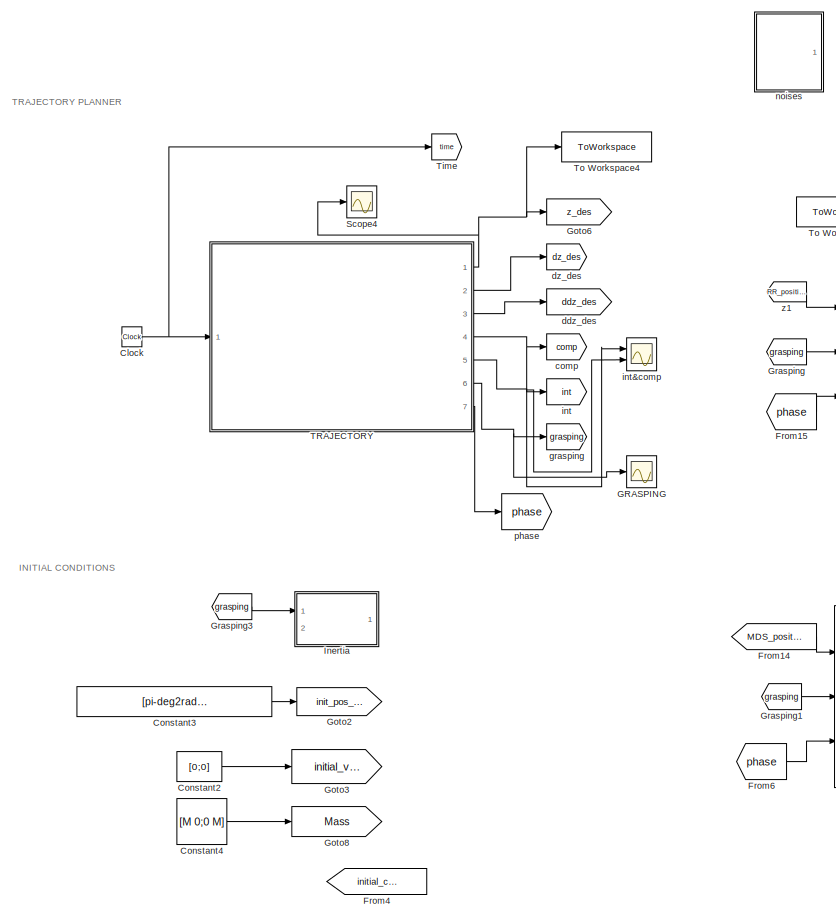
[diagram: root canvas - part 1/5, top left region]
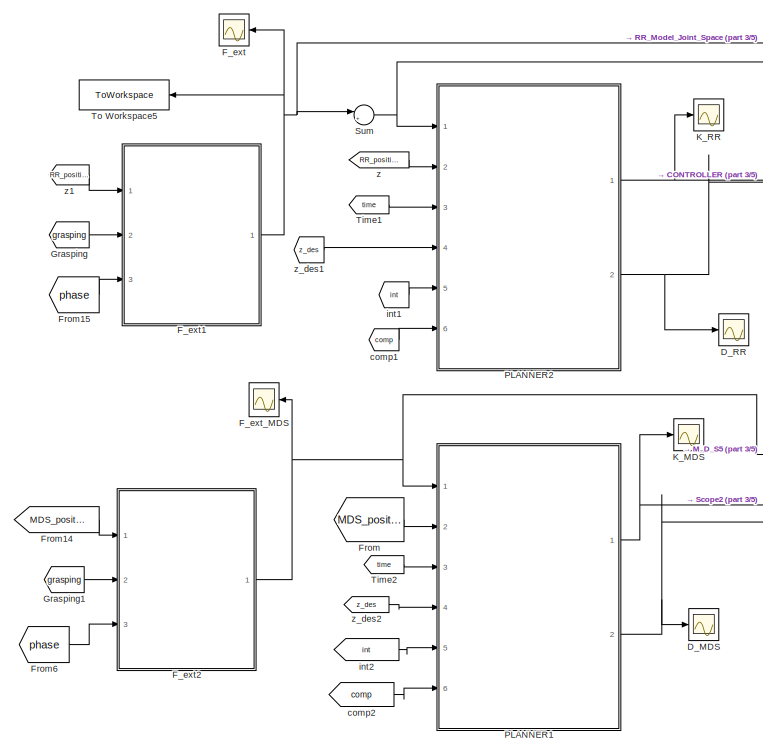
[diagram: root canvas - part 2/5, top center region]
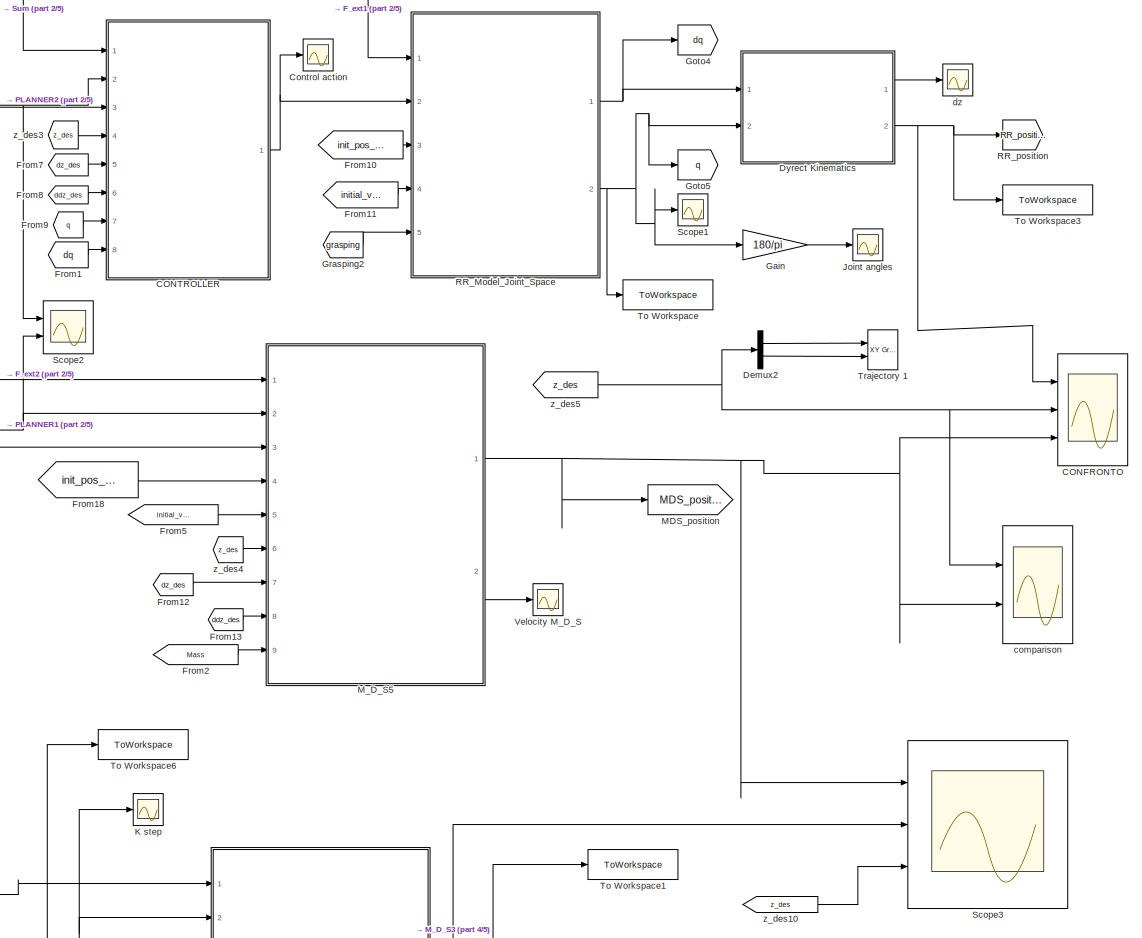
[diagram: root canvas - part 3/5, middle right region]
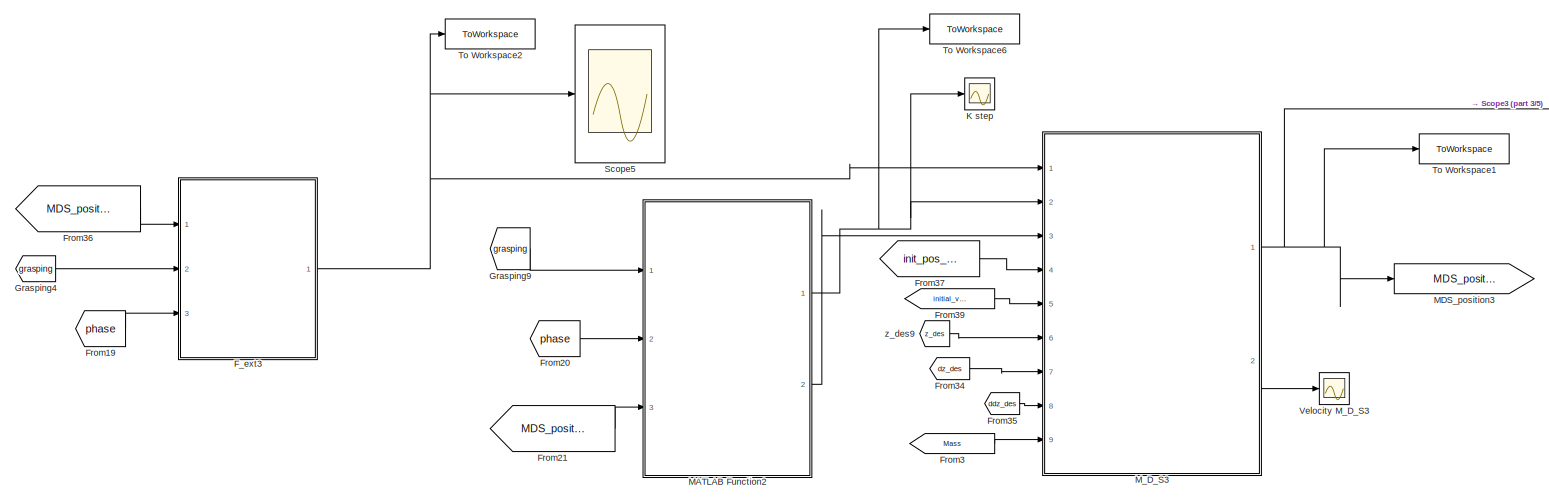
[diagram: root canvas - part 4/5, bottom center region]
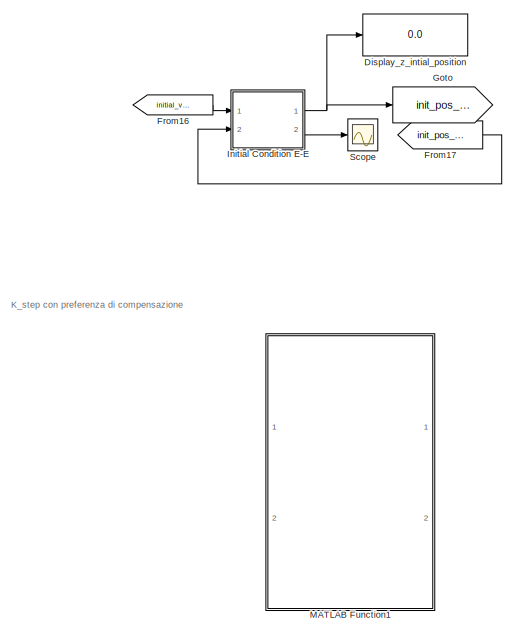
[diagram: root canvas - part 5/5, bottom left region]
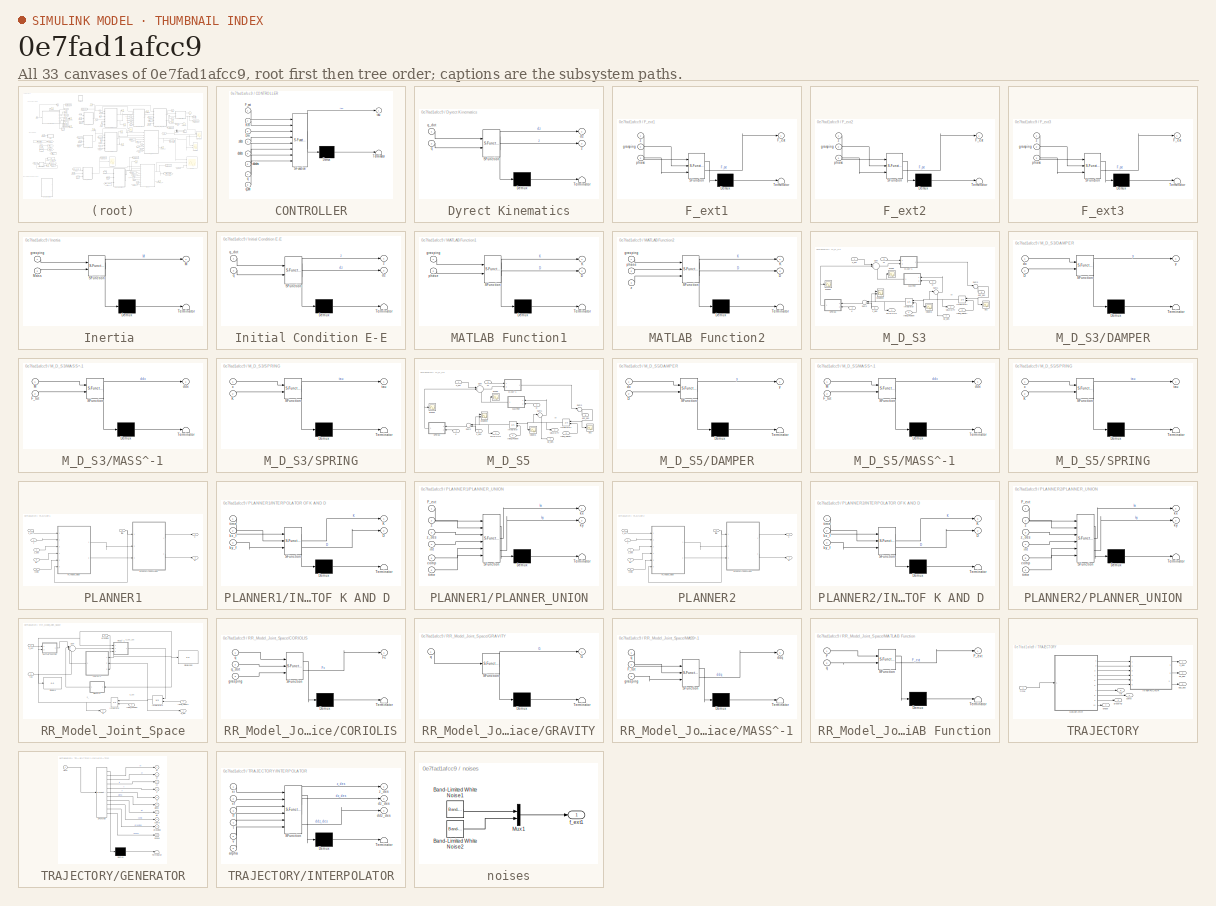
[diagram: thumbnail index - all 33 canvases of the model, root first then tree order]
MODEL slx_0e7fad1afcc9
KIND model
CONFIG AbsTol = auto
CONFIG EnableMultiTasking = off
CONFIG FixedStep = 0.001
CONFIG MaxStep = auto
CONFIG MinStep = auto
CONFIG RelTol = 1e-3
CONFIG SampleTimeConstraint = Unconstrained
CONFIG SolverName = FixedStepAuto
CONFIG StartTime = 0.0
CONFIG StopTime = 11
BLOCK [Scope] CONFRONTO
  Floating = off
  NumInputPorts = 3
  Ports = [3]
  ScopeSpecificationString = Simulink.scopes.TimeScopeBlockCfg('CurrentConfiguration', extmgr.ConfigurationSet(extmgr.Configuration('Core','General UI',true),extmgr.Configuration('Core','Source UI',true),extmgr.Configuration('Sources','WiredSimulink',true,'DataLoggingVariableName','ScopeData1'),extmgr.Configuration('Visuals','Time Domain',true,'SerializedDisplays',{struct('MinYLimReal','-0.3125','MaxYLimReal','1.8125','YLabel...<+1843ch>
BLOCK [SubSystem] CONTROLLER
  ErrorFcn = Stateflow.Translate.translate
  PermitHierarchicalResolution = ExplicitOnly
  Ports = [8, 1]
  RequestExecContextInheritance = off
  SFBlockType = MATLAB Function
  TreatAsAtomicUnit = on
BLOCK [Demux] CONTROLLER/ Demux 
  Outputs = 1
  Ports = [1, 1]
BLOCK [S-Function] CONTROLLER/ SFunction 
  EnableBusSupport = on
  FunctionName = sf_sfun
  Parameters = M
  PortCounts = [8 2]
  Ports = [8, 2]
  SFcnIsStateOwnerBlock = off
  SFunctionDeploymentMode = off
  Tag = Stateflow S-Function 13
BLOCK [Terminator] CONTROLLER/ Terminator 
BLOCK [Inport] CONTROLLER/Dm
  Port = 3
BLOCK [Inport] CONTROLLER/F_ext
BLOCK [Inport] CONTROLLER/Km
  Port = 2
BLOCK [Inport] CONTROLLER/ddzdes
  Port = 6
BLOCK [Inport] CONTROLLER/dzdes
  Port = 5
BLOCK [Inport] CONTROLLER/q
  Port = 7
BLOCK [Inport] CONTROLLER/q_dot
  Port = 8
BLOCK [Outport] CONTROLLER/tau
BLOCK [Inport] CONTROLLER/zdes
  Port = 4
BLOCK [Clock] Clock
BLOCK [Constant] Constant2
  Value = [0;0]
BLOCK [Constant] Constant3
  Value = [pi-deg2rad(20) ; -pi+deg2rad(20)]
  VectorParams1D = off
BLOCK [Constant] Constant4
  Value = [M 0;0 M]
BLOCK [Scope] Control action
  Floating = off
  NumInputPorts = 1
  Ports = [1]
  ScopeSpecificationString = Simulink.scopes.TimeScopeBlockCfg('CurrentConfiguration', extmgr.ConfigurationSet(extmgr.Configuration('Core','General UI',true),extmgr.Configuration('Core','Source UI',true),extmgr.Configuration('Sources','WiredSimulink',true,'DataLoggingVariableName','ScopeData2'),extmgr.Configuration('Visuals','Time Domain',true,'SerializedDisplays',{struct('MinYLimReal','-280.52987','MaxYLimReal','916.35715','...<+1519ch>
BLOCK [Scope] D_MDS
  Floating = off
  NumInputPorts = 1
  Ports = [1]
  ScopeSpecificationString = Simulink.scopes.TimeScopeBlockCfg('CurrentConfiguration', extmgr.ConfigurationSet(extmgr.Configuration('Core','General UI',true),extmgr.Configuration('Core','Source UI',true),extmgr.Configuration('Sources','WiredSimulink',true,'DataLoggingVariableName','ScopeData4'),extmgr.Configuration('Visuals','Time Domain',true,'SerializedDisplays',{struct('MinYLimReal','-1.75089','MaxYLimReal','15.75803','YLa...<+1449ch>
BLOCK [Scope] D_RR
  Floating = off
  NumInputPorts = 1
  Ports = [1]
  ScopeSpecificationString = Simulink.scopes.TimeScopeBlockCfg('CurrentConfiguration', extmgr.ConfigurationSet(extmgr.Configuration('Core','General UI',true),extmgr.Configuration('Core','Source UI',true),extmgr.Configuration('Sources','WiredSimulink',true,'DataLoggingVariableName','ScopeData3'),extmgr.Configuration('Visuals','Time Domain',true,'SerializedDisplays',{struct('MinYLimReal','-1.75089','MaxYLimReal','15.75803','YLa...<+1543ch>
BLOCK [Demux] Demux2
  Commented = on
  Outputs = 2
  Ports = [1, 2]
BLOCK [Display] Display_z_intial_position
  Decimation = 1
  Ports = [1]
BLOCK [SubSystem] Dyrect Kinematics
  ErrorFcn = Stateflow.Translate.translate
  PermitHierarchicalResolution = ExplicitOnly
  Ports = [2, 2]
  RequestExecContextInheritance = off
  SFBlockType = MATLAB Function
  TreatAsAtomicUnit = on
BLOCK [Demux] Dyrect Kinematics/ Demux 
  Outputs = 1
  Ports = [1, 1]
BLOCK [S-Function] Dyrect Kinematics/ SFunction 
  EnableBusSupport = on
  FunctionName = sf_sfun
  Parameters = l1,l2
  PortCounts = [2 3]
  Ports = [2, 3]
  SFcnIsStateOwnerBlock = off
  SFunctionDeploymentMode = off
  Tag = Stateflow S-Function 6
BLOCK [Terminator] Dyrect Kinematics/ Terminator 
BLOCK [Outport] Dyrect Kinematics/dz
BLOCK [Inport] Dyrect Kinematics/q
  Port = 2
BLOCK [Inport] Dyrect Kinematics/q_dot
BLOCK [Outport] Dyrect Kinematics/z
  Port = 2
BLOCK [Scope] F_ext
  Floating = off
  NumInputPorts = 1
  Ports = [1]
  ScopeSpecificationString = Simulink.scopes.TimeScopeBlockCfg('CurrentConfiguration', extmgr.ConfigurationSet(extmgr.Configuration('Core','General UI',true),extmgr.Configuration('Core','Source UI',true),extmgr.Configuration('Sources','WiredSimulink',true,'DataLoggingVariableName','ScopeData5'),extmgr.Configuration('Visuals','Time Domain',true,'SerializedDisplays',{struct('MinYLimReal','-20.04235','MaxYLimReal','13.33044','YL...<+1536ch>
BLOCK [SubSystem] F_ext1
  ErrorFcn = Stateflow.Translate.translate
  PermitHierarchicalResolution = ExplicitOnly
  Ports = [3, 1]
  RequestExecContextInheritance = off
  SFBlockType = MATLAB Function
  TreatAsAtomicUnit = on
BLOCK [Demux] F_ext1/ Demux 
  Outputs = 1
  Ports = [1, 1]
BLOCK [S-Function] F_ext1/ SFunction 
  EnableBusSupport = on
  FunctionName = sf_sfun
  Parameters = g,k_can,k_shelf,k_table,k_wall,l_can,mass_can,x_can,x_wall,y_shelf,y_table
  PortCounts = [3 2]
  Ports = [3, 2]
  SFcnIsStateOwnerBlock = off
  SFunctionDeploymentMode = off
  Tag = Stateflow S-Function 2
BLOCK [Terminator] F_ext1/ Terminator 
BLOCK [Outport] F_ext1/F_ext
BLOCK [Inport] F_ext1/grasping
  Port = 2
BLOCK [Inport] F_ext1/phase
  Port = 3
BLOCK [Inport] F_ext1/z
BLOCK [SubSystem] F_ext2
  ErrorFcn = Stateflow.Translate.translate
  PermitHierarchicalResolution = ExplicitOnly
  Ports = [3, 1]
  RequestExecContextInheritance = off
  SFBlockType = MATLAB Function
  TreatAsAtomicUnit = on
BLOCK [Demux] F_ext2/ Demux 
  Outputs = 1
  Ports = [1, 1]
BLOCK [S-Function] F_ext2/ SFunction 
  EnableBusSupport = on
  FunctionName = sf_sfun
  Parameters = g,k_can,k_shelf,k_table,k_wall,l_can,mass_can,x_can,x_wall,y_shelf,y_table
  PortCounts = [3 2]
  Ports = [3, 2]
  SFcnIsStateOwnerBlock = off
  SFunctionDeploymentMode = off
  Tag = Stateflow S-Function 1
BLOCK [Terminator] F_ext2/ Terminator 
BLOCK [Outport] F_ext2/F_ext
BLOCK [Inport] F_ext2/grasping
  Port = 2
BLOCK [Inport] F_ext2/phase
  Port = 3
BLOCK [Inport] F_ext2/z
BLOCK [SubSystem] F_ext3
  ErrorFcn = Stateflow.Translate.translate
  PermitHierarchicalResolution = ExplicitOnly
  Ports = [3, 1]
  RequestExecContextInheritance = off
  SFBlockType = MATLAB Function
  TreatAsAtomicUnit = on
BLOCK [Demux] F_ext3/ Demux 
  Outputs = 1
  Ports = [1, 1]
BLOCK [S-Function] F_ext3/ SFunction 
  EnableBusSupport = on
  FunctionName = sf_sfun
  Parameters = g,k_can,k_shelf,k_table,k_wall,l_can,mass_can,x_can,x_wall,y_shelf,y_table
  PortCounts = [3 2]
  Ports = [3, 2]
  SFcnIsStateOwnerBlock = off
  SFunctionDeploymentMode = off
  Tag = Stateflow S-Function 8
BLOCK [Terminator] F_ext3/ Terminator 
BLOCK [Outport] F_ext3/F_ext
BLOCK [Inport] F_ext3/grasping
  Port = 2
BLOCK [Inport] F_ext3/phase
  Port = 3
BLOCK [Inport] F_ext3/z
BLOCK [Scope] F_ext_MDS
  Floating = off
  NameLocation = top
  NumInputPorts = 1
  Ports = [1]
  ScopeSpecificationString = Simulink.scopes.TimeScopeBlockCfg('CurrentConfiguration', extmgr.ConfigurationSet(extmgr.Configuration('Core','General UI',true),extmgr.Configuration('Core','Source UI',true),extmgr.Configuration('Sources','WiredSimulink',true,'DataLoggingVariableName','ScopeData6'),extmgr.Configuration('Visuals','Time Domain',true,'SerializedDisplays',{struct('MinYLimReal','-9.68028','MaxYLimReal','12.56825','YLa...<+1585ch>
BLOCK [From] From
  GotoTag = MDS_position
BLOCK [From] From1
  GotoTag = dq
BLOCK [From] From10
  GotoTag = init_pos_RR
BLOCK [From] From11
  GotoTag = initial_vel
BLOCK [From] From12
  GotoTag = dz_des
  TagVisibility = global
BLOCK [From] From13
  GotoTag = ddz_des
BLOCK [From] From14
  GotoTag = MDS_position
BLOCK [From] From15
  GotoTag = phase
BLOCK [From] From16
  GotoTag = initial_vel
BLOCK [From] From17
  GotoTag = init_pos_RR
BLOCK [From] From18
  GotoTag = init_pos_MDS
BLOCK [From] From19
  GotoTag = phase
BLOCK [From] From2
  GotoTag = Mass
BLOCK [From] From20
  GotoTag = phase
BLOCK [From] From21
  GotoTag = MDS_position_stepposo
BLOCK [From] From3
  GotoTag = Mass
BLOCK [From] From34
  GotoTag = dz_des
  TagVisibility = global
BLOCK [From] From35
  GotoTag = ddz_des
BLOCK [From] From36
  GotoTag = MDS_position_stepposo
BLOCK [From] From37
  GotoTag = init_pos_MDS
BLOCK [From] From39
  GotoTag = initial_vel
BLOCK [From] From4
  Commented = on
  GotoTag = initial_condition
BLOCK [From] From5
  GotoTag = initial_vel
BLOCK [From] From6
  GotoTag = phase
BLOCK [From] From7
  GotoTag = dz_des
  TagVisibility = global
BLOCK [From] From8
  GotoTag = ddz_des
BLOCK [From] From9
  GotoTag = q
BLOCK [Scope] GRASPING
  Floating = off
  NumInputPorts = 1
  Ports = [1]
  ScopeSpecificationString = Simulink.scopes.TimeScopeBlockCfg('CurrentConfiguration', extmgr.ConfigurationSet(extmgr.Configuration('Core','General UI',true),extmgr.Configuration('Core','Source UI',true),extmgr.Configuration('Sources','WiredSimulink',true,'DataLoggingVariableName','ScopeData13'),extmgr.Configuration('Visuals','Time Domain',true,'SerializedDisplays',{struct('MinYLimReal','-0.125','MaxYLimReal','1.125','YLabelR...<+1422ch>
BLOCK [Gain] Gain
  Gain = 180/pi
BLOCK [Goto] Goto
  GotoTag = init_pos_MDS
BLOCK [Goto] Goto2
  GotoTag = init_pos_RR
BLOCK [Goto] Goto3
  GotoTag = initial_vel
BLOCK [Goto] Goto4
  GotoTag = dq
BLOCK [Goto] Goto5
  GotoTag = q
BLOCK [Goto] Goto6
  GotoTag = z_des
BLOCK [Goto] Goto8
  GotoTag = Mass
BLOCK [From] Grasping
  GotoTag = grasping
BLOCK [From] Grasping1
  GotoTag = grasping
BLOCK [From] Grasping2
  GotoTag = grasping
BLOCK [From] Grasping3
  Commented = on
  GotoTag = grasping
BLOCK [From] Grasping4
  GotoTag = grasping
BLOCK [From] Grasping9
  GotoTag = grasping
BLOCK [SubSystem] Inertia 
  Commented = on
  ErrorFcn = Stateflow.Translate.translate
  PermitHierarchicalResolution = ExplicitOnly
  Ports = [2, 1]
  RequestExecContextInheritance = off
  SFBlockType = MATLAB Function
  TreatAsAtomicUnit = on
BLOCK [Demux] Inertia / Demux 
  Outputs = 1
  Ports = [1, 1]
BLOCK [S-Function] Inertia / SFunction 
  EnableBusSupport = on
  FunctionName = sf_sfun
  Parameters = mass_can
  PortCounts = [2 2]
  Ports = [2, 2]
  SFcnIsStateOwnerBlock = off
  SFunctionDeploymentMode = off
  Tag = Stateflow S-Function 12
BLOCK [Terminator] Inertia / Terminator 
BLOCK [Outport] Inertia /M
BLOCK [Inport] Inertia /Mass
  Port = 2
BLOCK [Inport] Inertia /grasping
BLOCK [SubSystem] Initial Condition E-E
  ErrorFcn = Stateflow.Translate.translate
  PermitHierarchicalResolution = ExplicitOnly
  Ports = [2, 2]
  RequestExecContextInheritance = off
  SFBlockType = MATLAB Function
  TreatAsAtomicUnit = on
BLOCK [Demux] Initial Condition E-E/ Demux 
  Outputs = 1
  Ports = [1, 1]
BLOCK [S-Function] Initial Condition E-E/ SFunction 
  EnableBusSupport = on
  FunctionName = sf_sfun
  Parameters = l1,l2
  PortCounts = [2 3]
  Ports = [2, 3]
  SFcnIsStateOwnerBlock = off
  SFunctionDeploymentMode = off
  Tag = Stateflow S-Function 14
BLOCK [Terminator] Initial Condition E-E/ Terminator 
BLOCK [Outport] Initial Condition E-E/dz
  Port = 2
BLOCK [Inport] Initial Condition E-E/q
  Port = 2
BLOCK [Inport] Initial Condition E-E/q_dot
BLOCK [Outport] Initial Condition E-E/z
BLOCK [Scope] Joint angles
  Floating = off
  NumInputPorts = 1
  Ports = [1]
  ScopeSpecificationString = Simulink.scopes.TimeScopeBlockCfg('CurrentConfiguration', extmgr.ConfigurationSet(extmgr.Configuration('Core','General UI',true),extmgr.Configuration('Core','Source UI',true),extmgr.Configuration('Sources','WiredSimulink',true,'DataLoggingVariableName','ScopeData7'),extmgr.Configuration('Visuals','Time Domain',true,'SerializedDisplays',{struct('MinYLimReal','-206.38054','MaxYLimReal','207.11574','...<+1462ch>
BLOCK [Scope] K step
  Floating = off
  NumInputPorts = 1
  Ports = [1]
  ScopeSpecificationString = Simulink.scopes.TimeScopeBlockCfg('CurrentConfiguration', extmgr.ConfigurationSet(extmgr.Configuration('Core','General UI',true),extmgr.Configuration('Core','Source UI',true),extmgr.Configuration('Sources','WiredSimulink',true,'DataLoggingVariableName','ScopeData4'),extmgr.Configuration('Visuals','Time Domain',true,'SerializedDisplays',{struct('MinYLimReal','-61.3125','MaxYLimReal','551.8125','YLa...<+1595ch>
BLOCK [Scope] K_MDS
  Floating = off
  NumInputPorts = 1
  Ports = [1]
  ScopeSpecificationString = Simulink.scopes.TimeScopeBlockCfg('CurrentConfiguration', extmgr.ConfigurationSet(extmgr.Configuration('Core','General UI',true),extmgr.Configuration('Core','Source UI',true),extmgr.Configuration('Sources','WiredSimulink',true,'DataLoggingVariableName','ScopeData9'),extmgr.Configuration('Visuals','Time Domain',true,'SerializedDisplays',{struct('MinYLimReal','-61.3125','MaxYLimReal','551.8125','YLa...<+1606ch>
BLOCK [Scope] K_RR
  Floating = off
  NumInputPorts = 1
  Ports = [1]
  ScopeSpecificationString = Simulink.scopes.TimeScopeBlockCfg('CurrentConfiguration', extmgr.ConfigurationSet(extmgr.Configuration('Core','General UI',true),extmgr.Configuration('Core','Source UI',true),extmgr.Configuration('Sources','WiredSimulink',true,'DataLoggingVariableName','ScopeData8'),extmgr.Configuration('Visuals','Time Domain',true,'SerializedDisplays',{struct('MinYLimReal','-61.3125','MaxYLimReal','551.8125','YLa...<+1968ch>
BLOCK [SubSystem] MATLAB Function1
  Commented = on
  ErrorFcn = Stateflow.Translate.translate
  PermitHierarchicalResolution = ExplicitOnly
  Ports = [2, 2]
  RequestExecContextInheritance = off
  SFBlockType = MATLAB Function
  TreatAsAtomicUnit = on
BLOCK [Demux] MATLAB Function1/ Demux 
  Outputs = 1
  Ports = [1, 1]
BLOCK [S-Function] MATLAB Function1/ SFunction 
  EnableBusSupport = on
  FunctionName = sf_sfun
  Parameters = M
  PortCounts = [2 3]
  Ports = [2, 3]
  SFcnIsStateOwnerBlock = off
  SFunctionDeploymentMode = off
  Tag = Stateflow S-Function 9
BLOCK [Terminator] MATLAB Function1/ Terminator 
BLOCK [Outport] MATLAB Function1/D
  Port = 2
BLOCK [Outport] MATLAB Function1/K
BLOCK [Inport] MATLAB Function1/grasping
BLOCK [Inport] MATLAB Function1/phase
  Port = 2
BLOCK [SubSystem] MATLAB Function2
  ErrorFcn = Stateflow.Translate.translate
  PermitHierarchicalResolution = ExplicitOnly
  Ports = [3, 2]
  RequestExecContextInheritance = off
  SFBlockType = MATLAB Function
  TreatAsAtomicUnit = on
BLOCK [Demux] MATLAB Function2/ Demux 
  Outputs = 1
  Ports = [1, 1]
BLOCK [S-Function] MATLAB Function2/ SFunction 
  EnableBusSupport = on
  FunctionName = sf_sfun
  Parameters = M
  PortCounts = [3 3]
  Ports = [3, 3]
  SFcnIsStateOwnerBlock = off
  SFunctionDeploymentMode = off
  Tag = Stateflow S-Function 18
BLOCK [Terminator] MATLAB Function2/ Terminator 
BLOCK [Outport] MATLAB Function2/D
  Port = 2
BLOCK [Outport] MATLAB Function2/K
BLOCK [Inport] MATLAB Function2/grasping
BLOCK [Inport] MATLAB Function2/phase
  Port = 2
BLOCK [Inport] MATLAB Function2/z
  Port = 3
BLOCK [Goto] MDS_position
  GotoTag = MDS_position
BLOCK [Goto] MDS_position3
  GotoTag = MDS_position_stepposo
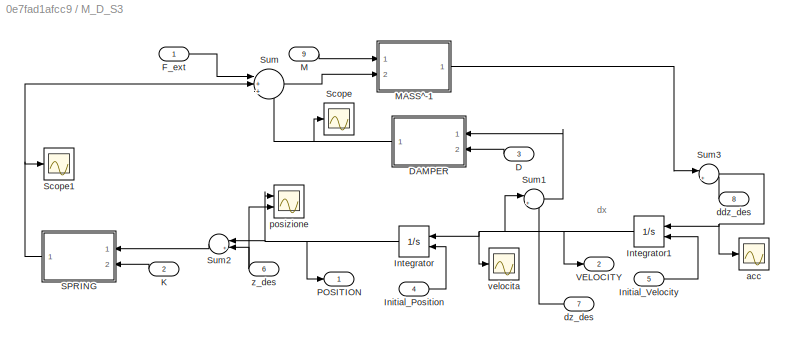
BLOCK [SubSystem] M_D_S3
  Ports = [9, 2]
  RequestExecContextInheritance = off
BLOCK [Inport] M_D_S3/D
  Port = 3
BLOCK [SubSystem] M_D_S3/DAMPER
  ErrorFcn = Stateflow.Translate.translate
  PermitHierarchicalResolution = ExplicitOnly
  Ports = [2, 1]
  RequestExecContextInheritance = off
  SFBlockType = MATLAB Function
  TreatAsAtomicUnit = on
BLOCK [Demux] M_D_S3/DAMPER/ Demux 
  Outputs = 1
  Ports = [1, 1]
BLOCK [S-Function] M_D_S3/DAMPER/ SFunction 
  EnableBusSupport = on
  FunctionName = sf_sfun
  PortCounts = [2 2]
  Ports = [2, 2]
  SFcnIsStateOwnerBlock = off
  SFunctionDeploymentMode = off
  Tag = Stateflow S-Function 32
BLOCK [Terminator] M_D_S3/DAMPER/ Terminator 
BLOCK [Inport] M_D_S3/DAMPER/D
  Port = 2
BLOCK [Inport] M_D_S3/DAMPER/dx
BLOCK [Outport] M_D_S3/DAMPER/y
BLOCK [Inport] M_D_S3/F_ext
BLOCK [Inport] M_D_S3/Initial_Position
  Port = 4
BLOCK [Inport] M_D_S3/Initial_Velocity
  Port = 5
BLOCK [Integrator] M_D_S3/Integrator
  InitialConditionSource = external
  Ports = [2, 1]
BLOCK [Integrator] M_D_S3/Integrator1
  InitialConditionSource = external
  Ports = [2, 1]
BLOCK [Inport] M_D_S3/K
  Port = 2
BLOCK [Inport] M_D_S3/M
  Port = 9
BLOCK [SubSystem] M_D_S3/MASS^-1
  ErrorFcn = Stateflow.Translate.translate
  PermitHierarchicalResolution = ExplicitOnly
  Ports = [2, 1]
  RequestExecContextInheritance = off
  SFBlockType = MATLAB Function
  TreatAsAtomicUnit = on
BLOCK [Demux] M_D_S3/MASS^-1/ Demux 
  Outputs = 1
  Ports = [1, 1]
BLOCK [S-Function] M_D_S3/MASS^-1/ SFunction 
  EnableBusSupport = on
  FunctionName = sf_sfun
  PortCounts = [2 2]
  Ports = [2, 2]
  SFcnIsStateOwnerBlock = off
  SFunctionDeploymentMode = off
  Tag = Stateflow S-Function 33
BLOCK [Terminator] M_D_S3/MASS^-1/ Terminator 
BLOCK [Inport] M_D_S3/MASS^-1/F_tot
  Port = 2
BLOCK [Inport] M_D_S3/MASS^-1/M
BLOCK [Outport] M_D_S3/MASS^-1/ddx
BLOCK [Outport] M_D_S3/POSITION
BLOCK [SubSystem] M_D_S3/SPRING
  ErrorFcn = Stateflow.Translate.translate
  PermitHierarchicalResolution = ExplicitOnly
  Ports = [2, 1]
  RequestExecContextInheritance = off
  SFBlockType = MATLAB Function
  TreatAsAtomicUnit = on
BLOCK [Demux] M_D_S3/SPRING/ Demux 
  Outputs = 1
  Ports = [1, 1]
BLOCK [S-Function] M_D_S3/SPRING/ SFunction 
  EnableBusSupport = on
  FunctionName = sf_sfun
  PortCounts = [2 2]
  Ports = [2, 2]
  SFcnIsStateOwnerBlock = off
  SFunctionDeploymentMode = off
  Tag = Stateflow S-Function 34
BLOCK [Terminator] M_D_S3/SPRING/ Terminator 
BLOCK [Inport] M_D_S3/SPRING/K
  Port = 2
BLOCK [Outport] M_D_S3/SPRING/tau
BLOCK [Inport] M_D_S3/SPRING/x
BLOCK [Scope] M_D_S3/Scope
  Floating = off
  NumInputPorts = 1
  Ports = [1]
  ScopeSpecificationString = Simulink.scopes.TimeScopeBlockCfg('CurrentConfiguration', extmgr.ConfigurationSet(extmgr.Configuration('Core','General UI',true),extmgr.Configuration('Core','Source UI',true),extmgr.Configuration('Sources','WiredSimulink',true,'DataLoggingVariableName','ScopeData15'),extmgr.Configuration('Visuals','Time Domain',true,'SerializedDisplays',{struct('MinYLimReal','-37.99931','MaxYLimReal','6.12026','YL...<+1429ch>
BLOCK [Scope] M_D_S3/Scope1
  Floating = off
  NumInputPorts = 1
  Ports = [1]
  ScopeSpecificationString = Simulink.scopes.TimeScopeBlockCfg('CurrentConfiguration', extmgr.ConfigurationSet(extmgr.Configuration('Core','General UI',true),extmgr.Configuration('Core','Source UI',true),extmgr.Configuration('Sources','WiredSimulink',true,'DataLoggingVariableName','ScopeData17'),extmgr.Configuration('Visuals','Time Domain',true,'SerializedDisplays',{struct('MinYLimReal','-42.49417','MaxYLimReal','4.72157','YL...<+1454ch>
BLOCK [Sum] M_D_S3/Sum
  Inputs = |+++
  Ports = [3, 1]
BLOCK [Sum] M_D_S3/Sum1
  Inputs = |+-
  Ports = [2, 1]
BLOCK [Sum] M_D_S3/Sum2
  Inputs = |+-
  Ports = [2, 1]
BLOCK [Sum] M_D_S3/Sum3
  Inputs = |++
  Ports = [2, 1]
BLOCK [Outport] M_D_S3/VELOCITY
  Port = 2
BLOCK [Scope] M_D_S3/acc
  Floating = off
  NumInputPorts = 1
  Ports = [1]
  ScopeSpecificationString = Simulink.scopes.TimeScopeBlockCfg('CurrentConfiguration', extmgr.ConfigurationSet(extmgr.Configuration('Core','General UI',true),extmgr.Configuration('Core','Source UI',true),extmgr.Configuration('Sources','WiredSimulink',true,'DataLoggingVariableName','ScopeData6'),extmgr.Configuration('Visuals','Time Domain',true,'SerializedDisplays',{struct('MinYLimReal','-10.14929','MaxYLimReal','22.48721','YL...<+1470ch>
BLOCK [Inport] M_D_S3/ddz_des
  Port = 8
BLOCK [Inport] M_D_S3/dz_des
  Port = 7
BLOCK [Scope] M_D_S3/posizione
  Floating = off
  NumInputPorts = 2
  Ports = [2]
  ScopeSpecificationString = Simulink.scopes.TimeScopeBlockCfg('CurrentConfiguration', extmgr.ConfigurationSet(extmgr.Configuration('Core','General UI',true),extmgr.Configuration('Core','Source UI',true),extmgr.Configuration('Sources','WiredSimulink',true,'DataLoggingVariableName','ScopeData8'),extmgr.Configuration('Visuals','Time Domain',true,'SerializedDisplays',{struct('MinYLimReal','-0.15023','MaxYLimReal','1.35207','YLab...<+1431ch>
BLOCK [Scope] M_D_S3/velocita
  Floating = off
  NumInputPorts = 1
  Ports = [1]
  ScopeSpecificationString = Simulink.scopes.TimeScopeBlockCfg('CurrentConfiguration', extmgr.ConfigurationSet(extmgr.Configuration('Core','General UI',true),extmgr.Configuration('Core','Source UI',true),extmgr.Configuration('Sources','WiredSimulink',true,'DataLoggingVariableName','ScopeData7'),extmgr.Configuration('Visuals','Time Domain',true,'SerializedDisplays',{struct('MinYLimReal','-0.64463','MaxYLimReal','2.63053','YLab...<+1417ch>
BLOCK [Inport] M_D_S3/z_des
  Port = 6
BLOCK [SubSystem] M_D_S5
  Ports = [9, 2]
  RequestExecContextInheritance = off
BLOCK [Inport] M_D_S5/D
  Port = 3
BLOCK [SubSystem] M_D_S5/DAMPER
  ErrorFcn = Stateflow.Translate.translate
  PermitHierarchicalResolution = ExplicitOnly
  Ports = [2, 1]
  RequestExecContextInheritance = off
  SFBlockType = MATLAB Function
  TreatAsAtomicUnit = on
BLOCK [Demux] M_D_S5/DAMPER/ Demux 
  Outputs = 1
  Ports = [1, 1]
BLOCK [S-Function] M_D_S5/DAMPER/ SFunction 
  EnableBusSupport = on
  FunctionName = sf_sfun
  PortCounts = [2 2]
  Ports = [2, 2]
  SFcnIsStateOwnerBlock = off
  SFunctionDeploymentMode = off
  Tag = Stateflow S-Function 21
BLOCK [Terminator] M_D_S5/DAMPER/ Terminator 
BLOCK [Inport] M_D_S5/DAMPER/D
  Port = 2
BLOCK [Inport] M_D_S5/DAMPER/dx
BLOCK [Outport] M_D_S5/DAMPER/y
BLOCK [Inport] M_D_S5/F_ext
BLOCK [Inport] M_D_S5/Initial_Position
  Port = 4
BLOCK [Inport] M_D_S5/Initial_Velocity
  Port = 5
BLOCK [Integrator] M_D_S5/Integrator
  InitialConditionSource = external
  Ports = [2, 1]
BLOCK [Integrator] M_D_S5/Integrator1
  InitialConditionSource = external
  Ports = [2, 1]
BLOCK [Inport] M_D_S5/K
  Port = 2
BLOCK [Inport] M_D_S5/M
  Port = 9
BLOCK [SubSystem] M_D_S5/MASS^-1
  ErrorFcn = Stateflow.Translate.translate
  PermitHierarchicalResolution = ExplicitOnly
  Ports = [2, 1]
  RequestExecContextInheritance = off
  SFBlockType = MATLAB Function
  TreatAsAtomicUnit = on
BLOCK [Demux] M_D_S5/MASS^-1/ Demux 
  Outputs = 1
  Ports = [1, 1]
BLOCK [S-Function] M_D_S5/MASS^-1/ SFunction 
  EnableBusSupport = on
  FunctionName = sf_sfun
  PortCounts = [2 2]
  Ports = [2, 2]
  SFcnIsStateOwnerBlock = off
  SFunctionDeploymentMode = off
  Tag = Stateflow S-Function 22
BLOCK [Terminator] M_D_S5/MASS^-1/ Terminator 
BLOCK [Inport] M_D_S5/MASS^-1/F_tot
  Port = 2
BLOCK [Inport] M_D_S5/MASS^-1/M
BLOCK [Outport] M_D_S5/MASS^-1/ddx
BLOCK [Outport] M_D_S5/POSITION
BLOCK [SubSystem] M_D_S5/SPRING
  ErrorFcn = Stateflow.Translate.translate
  PermitHierarchicalResolution = ExplicitOnly
  Ports = [2, 1]
  RequestExecContextInheritance = off
  SFBlockType = MATLAB Function
  TreatAsAtomicUnit = on
BLOCK [Demux] M_D_S5/SPRING/ Demux 
  Outputs = 1
  Ports = [1, 1]
BLOCK [S-Function] M_D_S5/SPRING/ SFunction 
  EnableBusSupport = on
  FunctionName = sf_sfun
  PortCounts = [2 2]
  Ports = [2, 2]
  SFcnIsStateOwnerBlock = off
  SFunctionDeploymentMode = off
  Tag = Stateflow S-Function 23
BLOCK [Terminator] M_D_S5/SPRING/ Terminator 
BLOCK [Inport] M_D_S5/SPRING/K
  Port = 2
BLOCK [Outport] M_D_S5/SPRING/tau
BLOCK [Inport] M_D_S5/SPRING/x
BLOCK [Scope] M_D_S5/Scope
  Floating = off
  NumInputPorts = 1
  Ports = [1]
  ScopeSpecificationString = Simulink.scopes.TimeScopeBlockCfg('CurrentConfiguration', extmgr.ConfigurationSet(extmgr.Configuration('Core','General UI',true),extmgr.Configuration('Core','Source UI',true),extmgr.Configuration('Sources','WiredSimulink',true,'DataLoggingVariableName','ScopeData15'),extmgr.Configuration('Visuals','Time Domain',true,'SerializedDisplays',{struct('MinYLimReal','-37.99931','MaxYLimReal','6.12026','YL...<+1429ch>
BLOCK [Scope] M_D_S5/Scope1
  Floating = off
  NumInputPorts = 1
  Ports = [1]
  ScopeSpecificationString = Simulink.scopes.TimeScopeBlockCfg('CurrentConfiguration', extmgr.ConfigurationSet(extmgr.Configuration('Core','General UI',true),extmgr.Configuration('Core','Source UI',true),extmgr.Configuration('Sources','WiredSimulink',true,'DataLoggingVariableName','ScopeData17'),extmgr.Configuration('Visuals','Time Domain',true,'SerializedDisplays',{struct('MinYLimReal','-42.49417','MaxYLimReal','4.72157','YL...<+1454ch>
BLOCK [Sum] M_D_S5/Sum
  Inputs = |+++
  Ports = [3, 1]
BLOCK [Sum] M_D_S5/Sum1
  Inputs = |+-
  Ports = [2, 1]
BLOCK [Sum] M_D_S5/Sum2
  Inputs = |+-
  Ports = [2, 1]
BLOCK [Sum] M_D_S5/Sum3
  Inputs = |++
  Ports = [2, 1]
BLOCK [Outport] M_D_S5/VELOCITY
  Port = 2
BLOCK [Scope] M_D_S5/acc
  Floating = off
  NumInputPorts = 1
  Ports = [1]
  ScopeSpecificationString = Simulink.scopes.TimeScopeBlockCfg('CurrentConfiguration', extmgr.ConfigurationSet(extmgr.Configuration('Core','General UI',true),extmgr.Configuration('Core','Source UI',true),extmgr.Configuration('Sources','WiredSimulink',true,'DataLoggingVariableName','ScopeData6'),extmgr.Configuration('Visuals','Time Domain',true,'SerializedDisplays',{struct('MinYLimReal','-10.14929','MaxYLimReal','22.48721','YL...<+1470ch>
BLOCK [Inport] M_D_S5/ddz_des
  Port = 8
BLOCK [Inport] M_D_S5/dz_des
  Port = 7
BLOCK [Scope] M_D_S5/posizione
  Floating = off
  NumInputPorts = 2
  Ports = [2]
  ScopeSpecificationString = Simulink.scopes.TimeScopeBlockCfg('CurrentConfiguration', extmgr.ConfigurationSet(extmgr.Configuration('Core','General UI',true),extmgr.Configuration('Core','Source UI',true),extmgr.Configuration('Sources','WiredSimulink',true,'DataLoggingVariableName','ScopeData8'),extmgr.Configuration('Visuals','Time Domain',true,'SerializedDisplays',{struct('MinYLimReal','-0.15023','MaxYLimReal','1.35207','YLab...<+1431ch>
BLOCK [Scope] M_D_S5/velocita
  Floating = off
  NumInputPorts = 1
  Ports = [1]
  ScopeSpecificationString = Simulink.scopes.TimeScopeBlockCfg('CurrentConfiguration', extmgr.ConfigurationSet(extmgr.Configuration('Core','General UI',true),extmgr.Configuration('Core','Source UI',true),extmgr.Configuration('Sources','WiredSimulink',true,'DataLoggingVariableName','ScopeData7'),extmgr.Configuration('Visuals','Time Domain',true,'SerializedDisplays',{struct('MinYLimReal','-0.64463','MaxYLimReal','2.63053','YLab...<+1417ch>
BLOCK [Inport] M_D_S5/z_des
  Port = 6
BLOCK [SubSystem] PLANNER1
  Ports = [6, 2]
  RequestExecContextInheritance = off
BLOCK [Outport] PLANNER1/D
  Port = 2
BLOCK [Inport] PLANNER1/F_ext
BLOCK [SubSystem] PLANNER1/INTERPOLATOR OF K AND D 
  ErrorFcn = Stateflow.Translate.translate
  PermitHierarchicalResolution = ExplicitOnly
  Ports = [3, 2]
  RequestExecContextInheritance = off
  SFBlockType = MATLAB Function
  TreatAsAtomicUnit = on
BLOCK [Demux] PLANNER1/INTERPOLATOR OF K AND D / Demux 
  Outputs = 1
  Ports = [1, 1]
BLOCK [S-Function] PLANNER1/INTERPOLATOR OF K AND D / SFunction 
  EnableBusSupport = on
  FunctionName = sf_sfun
  Parameters = F_max,M,a0,berta,csi,e_max,mass
  PortCounts = [3 3]
  Ports = [3, 3]
  SFcnIsStateOwnerBlock = off
  SFunctionDeploymentMode = off
  Tag = Stateflow S-Function 7
BLOCK [Terminator] PLANNER1/INTERPOLATOR OF K AND D / Terminator 
BLOCK [Outport] PLANNER1/INTERPOLATOR OF K AND D /D
  Port = 2
BLOCK [Outport] PLANNER1/INTERPOLATOR OF K AND D /K
BLOCK [Inport] PLANNER1/INTERPOLATOR OF K AND D /kx_f
  Port = 2
BLOCK [Inport] PLANNER1/INTERPOLATOR OF K AND D /ky_f
  Port = 3
BLOCK [Inport] PLANNER1/INTERPOLATOR OF K AND D /time
BLOCK [Outport] PLANNER1/K
BLOCK [SubSystem] PLANNER1/PLANNER_UNION
  ErrorFcn = Stateflow.Translate.translate
  PermitHierarchicalResolution = ExplicitOnly
  Ports = [6, 2]
  RequestExecContextInheritance = off
  SFBlockType = MATLAB Function
  TreatAsAtomicUnit = on
BLOCK [Demux] PLANNER1/PLANNER_UNION/ Demux 
  Outputs = 1
  Ports = [1, 1]
BLOCK [S-Function] PLANNER1/PLANNER_UNION/ SFunction 
  EnableBusSupport = on
  FunctionName = sf_sfun
  Parameters = F_int_max,F_max,e_max
  PortCounts = [6 3]
  Ports = [6, 3]
  SFcnIsStateOwnerBlock = off
  SFunctionDeploymentMode = off
  Tag = Stateflow S-Function 10
BLOCK [Terminator] PLANNER1/PLANNER_UNION/ Terminator 
BLOCK [Inport] PLANNER1/PLANNER_UNION/F_ext
BLOCK [Inport] PLANNER1/PLANNER_UNION/comp
  Port = 5
BLOCK [Inport] PLANNER1/PLANNER_UNION/int
  Port = 4
BLOCK [Outport] PLANNER1/PLANNER_UNION/kx
BLOCK [Outport] PLANNER1/PLANNER_UNION/ky
  Port = 2
BLOCK [Inport] PLANNER1/PLANNER_UNION/time
  Port = 6
BLOCK [Inport] PLANNER1/PLANNER_UNION/z
  Port = 2
BLOCK [Inport] PLANNER1/PLANNER_UNION/z_des
  Port = 3
BLOCK [Inport] PLANNER1/comp
  Port = 6
BLOCK [Inport] PLANNER1/int
  Port = 5
BLOCK [Inport] PLANNER1/time
  Port = 3
BLOCK [Inport] PLANNER1/z
  Port = 2
BLOCK [Inport] PLANNER1/z_des
  Port = 4
BLOCK [SubSystem] PLANNER2
  Ports = [6, 2]
  RequestExecContextInheritance = off
BLOCK [Outport] PLANNER2/D
  Port = 2
BLOCK [Inport] PLANNER2/F_ext
BLOCK [SubSystem] PLANNER2/INTERPOLATOR OF K AND D 
  ErrorFcn = Stateflow.Translate.translate
  PermitHierarchicalResolution = ExplicitOnly
  Ports = [3, 2]
  RequestExecContextInheritance = off
  SFBlockType = MATLAB Function
  TreatAsAtomicUnit = on
BLOCK [Demux] PLANNER2/INTERPOLATOR OF K AND D / Demux 
  Outputs = 1
  Ports = [1, 1]
BLOCK [S-Function] PLANNER2/INTERPOLATOR OF K AND D / SFunction 
  EnableBusSupport = on
  FunctionName = sf_sfun
  Parameters = F_max,M,a0,berta,csi,e_max,mass
  PortCounts = [3 3]
  Ports = [3, 3]
  SFcnIsStateOwnerBlock = off
  SFunctionDeploymentMode = off
  Tag = Stateflow S-Function 15
BLOCK [Terminator] PLANNER2/INTERPOLATOR OF K AND D / Terminator 
BLOCK [Outport] PLANNER2/INTERPOLATOR OF K AND D /D
  Port = 2
BLOCK [Outport] PLANNER2/INTERPOLATOR OF K AND D /K
BLOCK [Inport] PLANNER2/INTERPOLATOR OF K AND D /kx_f
  Port = 2
BLOCK [Inport] PLANNER2/INTERPOLATOR OF K AND D /ky_f
  Port = 3
BLOCK [Inport] PLANNER2/INTERPOLATOR OF K AND D /time
BLOCK [Outport] PLANNER2/K
BLOCK [SubSystem] PLANNER2/PLANNER_UNION
  ErrorFcn = Stateflow.Translate.translate
  PermitHierarchicalResolution = ExplicitOnly
  Ports = [6, 2]
  RequestExecContextInheritance = off
  SFBlockType = MATLAB Function
  TreatAsAtomicUnit = on
BLOCK [Demux] PLANNER2/PLANNER_UNION/ Demux 
  Outputs = 1
  Ports = [1, 1]
BLOCK [S-Function] PLANNER2/PLANNER_UNION/ SFunction 
  EnableBusSupport = on
  FunctionName = sf_sfun
  Parameters = F_int_max,F_max,e_max
  PortCounts = [6 3]
  Ports = [6, 3]
  SFcnIsStateOwnerBlock = off
  SFunctionDeploymentMode = off
  Tag = Stateflow S-Function 16
BLOCK [Terminator] PLANNER2/PLANNER_UNION/ Terminator 
BLOCK [Inport] PLANNER2/PLANNER_UNION/F_ext
BLOCK [Inport] PLANNER2/PLANNER_UNION/comp
  Port = 5
BLOCK [Inport] PLANNER2/PLANNER_UNION/int
  Port = 4
BLOCK [Outport] PLANNER2/PLANNER_UNION/kx
BLOCK [Outport] PLANNER2/PLANNER_UNION/ky
  Port = 2
BLOCK [Inport] PLANNER2/PLANNER_UNION/time
  Port = 6
BLOCK [Inport] PLANNER2/PLANNER_UNION/z
  Port = 2
BLOCK [Inport] PLANNER2/PLANNER_UNION/z_des
  Port = 3
BLOCK [Inport] PLANNER2/comp
  Port = 6
BLOCK [Inport] PLANNER2/int
  Port = 5
BLOCK [Inport] PLANNER2/time
  Port = 3
BLOCK [Inport] PLANNER2/z
  Port = 2
BLOCK [Inport] PLANNER2/z_des
  Port = 4
BLOCK [SubSystem] RR_Model_Joint_Space
  Ports = [5, 2]
  RequestExecContextInheritance = off
BLOCK [SubSystem] RR_Model_Joint_Space/CORIOLIS
  ErrorFcn = Stateflow.Translate.translate
  PermitHierarchicalResolution = ExplicitOnly
  Ports = [3, 1]
  RequestExecContextInheritance = off
  SFBlockType = MATLAB Function
  TreatAsAtomicUnit = on
BLOCK [Demux] RR_Model_Joint_Space/CORIOLIS/ Demux 
  Outputs = 1
  Ports = [1, 1]
BLOCK [S-Function] RR_Model_Joint_Space/CORIOLIS/ SFunction 
  EnableBusSupport = on
  FunctionName = sf_sfun
  Parameters = a,ac
  PortCounts = [3 2]
  Ports = [3, 2]
  SFcnIsStateOwnerBlock = off
  SFunctionDeploymentMode = off
  Tag = Stateflow S-Function 19
BLOCK [Terminator] RR_Model_Joint_Space/CORIOLIS/ Terminator 
BLOCK [Outport] RR_Model_Joint_Space/CORIOLIS/Fc
BLOCK [Inport] RR_Model_Joint_Space/CORIOLIS/grasping
  Port = 3
BLOCK [Inport] RR_Model_Joint_Space/CORIOLIS/q
BLOCK [Inport] RR_Model_Joint_Space/CORIOLIS/q_dot
  Port = 2
BLOCK [Display] RR_Model_Joint_Space/Display5
  Decimation = 1
  Ports = [1]
BLOCK [Display] RR_Model_Joint_Space/Displayqqq
  Decimation = 1
  Ports = [1]
BLOCK [Inport] RR_Model_Joint_Space/F_ext
BLOCK [SubSystem] RR_Model_Joint_Space/GRAVITY
  ErrorFcn = Stateflow.Translate.translate
  PermitHierarchicalResolution = ExplicitOnly
  Ports = [1, 1]
  RequestExecContextInheritance = off
  SFBlockType = MATLAB Function
  TreatAsAtomicUnit = on
BLOCK [Demux] RR_Model_Joint_Space/GRAVITY/ Demux 
  Outputs = 1
  Ports = [1, 1]
BLOCK [S-Function] RR_Model_Joint_Space/GRAVITY/ SFunction 
  EnableBusSupport = on
  FunctionName = sf_sfun
  Parameters = g,l1,l2,m1,m2
  PortCounts = [1 2]
  Ports = [1, 2]
  SFcnIsStateOwnerBlock = off
  SFunctionDeploymentMode = off
  Tag = Stateflow S-Function 3
BLOCK [Terminator] RR_Model_Joint_Space/GRAVITY/ Terminator 
BLOCK [Outport] RR_Model_Joint_Space/GRAVITY/G
BLOCK [Inport] RR_Model_Joint_Space/GRAVITY/q
BLOCK [Inport] RR_Model_Joint_Space/Initial_Position
  NameLocation = top
  Port = 3
BLOCK [Inport] RR_Model_Joint_Space/Initial_Velocity
  Port = 4
BLOCK [Integrator] RR_Model_Joint_Space/Integrator
  InitialConditionSource = external
  Ports = [2, 1]
BLOCK [Integrator] RR_Model_Joint_Space/Integrator1
  InitialCondition = [0;0]
  InitialConditionSource = external
  Ports = [2, 1]
BLOCK [SubSystem] RR_Model_Joint_Space/MASS^-1
  ErrorFcn = Stateflow.Translate.translate
  PermitHierarchicalResolution = ExplicitOnly
  Ports = [3, 1]
  RequestExecContextInheritance = off
  SFBlockType = MATLAB Function
  TreatAsAtomicUnit = on
BLOCK [Demux] RR_Model_Joint_Space/MASS^-1/ Demux 
  Outputs = 1
  Ports = [1, 1]
BLOCK [S-Function] RR_Model_Joint_Space/MASS^-1/ SFunction 
  EnableBusSupport = on
  FunctionName = sf_sfun
  Parameters = I1,I2,Ic,l1,l2,m1,m2,mass_can
  PortCounts = [3 2]
  Ports = [3, 2]
  SFcnIsStateOwnerBlock = off
  SFunctionDeploymentMode = off
  Tag = Stateflow S-Function 4
BLOCK [Terminator] RR_Model_Joint_Space/MASS^-1/ Terminator 
BLOCK [Inport] RR_Model_Joint_Space/MASS^-1/F_tot
  Port = 2
BLOCK [Outport] RR_Model_Joint_Space/MASS^-1/ddq
BLOCK [Inport] RR_Model_Joint_Space/MASS^-1/grasping
  Port = 3
BLOCK [Inport] RR_Model_Joint_Space/MASS^-1/q
BLOCK [SubSystem] RR_Model_Joint_Space/MATLAB Function
  ErrorFcn = Stateflow.Translate.translate
  PermitHierarchicalResolution = ExplicitOnly
  Ports = [2, 1]
  RequestExecContextInheritance = off
  SFBlockType = MATLAB Function
  TreatAsAtomicUnit = on
BLOCK [Demux] RR_Model_Joint_Space/MATLAB Function/ Demux 
  Outputs = 1
  Ports = [1, 1]
BLOCK [S-Function] RR_Model_Joint_Space/MATLAB Function/ SFunction 
  EnableBusSupport = on
  FunctionName = sf_sfun
  Parameters = l1,l2
  PortCounts = [2 2]
  Ports = [2, 2]
  SFcnIsStateOwnerBlock = off
  SFunctionDeploymentMode = off
  Tag = Stateflow S-Function 5
BLOCK [Terminator] RR_Model_Joint_Space/MATLAB Function/ Terminator 
BLOCK [Inport] RR_Model_Joint_Space/MATLAB Function/F
BLOCK [Outport] RR_Model_Joint_Space/MATLAB Function/F_ext
BLOCK [Inport] RR_Model_Joint_Space/MATLAB Function/q
  Port = 2
BLOCK [Sum] RR_Model_Joint_Space/Sum
  Inputs = |++-+
  Ports = [4, 1]
BLOCK [Inport] RR_Model_Joint_Space/grasping
  Port = 5
BLOCK [Outport] RR_Model_Joint_Space/q
  Port = 2
BLOCK [Outport] RR_Model_Joint_Space/q_dot
BLOCK [Inport] RR_Model_Joint_Space/tau
  Port = 2
BLOCK [Goto] RR_position
  GotoTag = RR_position
BLOCK [Scope] Scope
  Floating = off
  NumInputPorts = 1
  Ports = [1]
  ScopeSpecificationString = Simulink.scopes.TimeScopeBlockCfg('CurrentConfiguration', extmgr.ConfigurationSet(extmgr.Configuration('Core','General UI',true),extmgr.Configuration('Core','Source UI',true),extmgr.Configuration('Sources','WiredSimulink',true,'DataLoggingVariableName','ScopeData10'),extmgr.Configuration('Visuals','Time Domain',true),extmgr.Configuration('Tools','Plot Navigation',true),extmgr.Configuration('Tools'...<+41ch>
BLOCK [Scope] Scope1
  Floating = off
  NumInputPorts = 1
  Ports = [1]
  ScopeSpecificationString = Simulink.scopes.TimeScopeBlockCfg('CurrentConfiguration', extmgr.ConfigurationSet(extmgr.Configuration('Core','General UI',true),extmgr.Configuration('Core','Source UI',true),extmgr.Configuration('Sources','WiredSimulink',true,'DataLoggingVariableName','ScopeData1'),extmgr.Configuration('Visuals','Time Domain',true,'SerializedDisplays',{struct('MinYLimReal','-3.60202','MaxYLimReal','3.61485','YLab...<+1437ch>
BLOCK [Scope] Scope2
  Floating = off
  NumInputPorts = 2
  Ports = [2]
  ScopeSpecificationString = Simulink.scopes.TimeScopeBlockCfg('CurrentConfiguration', extmgr.ConfigurationSet(extmgr.Configuration('Core','General UI',true),extmgr.Configuration('Core','Source UI',true),extmgr.Configuration('Sources','WiredSimulink',true,'DataLoggingVariableName','ScopeData1'),extmgr.Configuration('Visuals','Time Domain',true,'SerializedDisplays',{struct('MinYLimReal','-61.3125','MaxYLimReal','551.8125','YLa...<+1776ch>
BLOCK [Scope] Scope3
  Floating = off
  NumInputPorts = 3
  Ports = [3]
  ScopeSpecificationString = Simulink.scopes.TimeScopeBlockCfg('CurrentConfiguration', extmgr.ConfigurationSet(extmgr.Configuration('Core','General UI',true),extmgr.Configuration('Core','Source UI',true),extmgr.Configuration('Sources','WiredSimulink',true,'DataLoggingVariableName','ScopeData1'),extmgr.Configuration('Visuals','Time Domain',true,'SerializedDisplays',{struct('MinYLimReal','-0.3125','MaxYLimReal','1.8125','YLabel...<+1634ch>
BLOCK [Scope] Scope4
  Floating = off
  NumInputPorts = 1
  Ports = [1]
  ScopeSpecificationString = Simulink.scopes.TimeScopeBlockCfg('CurrentConfiguration', extmgr.ConfigurationSet(extmgr.Configuration('Core','General UI',true),extmgr.Configuration('Core','Source UI',true),extmgr.Configuration('Sources','WiredSimulink',true,'DataLoggingVariableName','ScopeData1'),extmgr.Configuration('Visuals','Time Domain',true,'SerializedDisplays',{struct('MinYLimReal','-0.3125','MaxYLimReal','1.8125','YLabel...<+1511ch>
BLOCK [Scope] Scope5
  Floating = off
  NumInputPorts = 1
  Ports = [1]
  ScopeSpecificationString = Simulink.scopes.TimeScopeBlockCfg('CurrentConfiguration', extmgr.ConfigurationSet(extmgr.Configuration('Core','General UI',true),extmgr.Configuration('Core','Source UI',true),extmgr.Configuration('Sources','WiredSimulink',true,'DataLoggingVariableName','ScopeData2'),extmgr.Configuration('Visuals','Time Domain',true,'SerializedDisplays',{struct('MinYLimReal','-23.69374','MaxYLimReal','52.39905','YL...<+1577ch>
BLOCK [Sum] Sum
  Inputs = |++
  Ports = [2, 1]
BLOCK [SubSystem] TRAJECTORY
  Ports = [1, 7]
  RequestExecContextInheritance = off
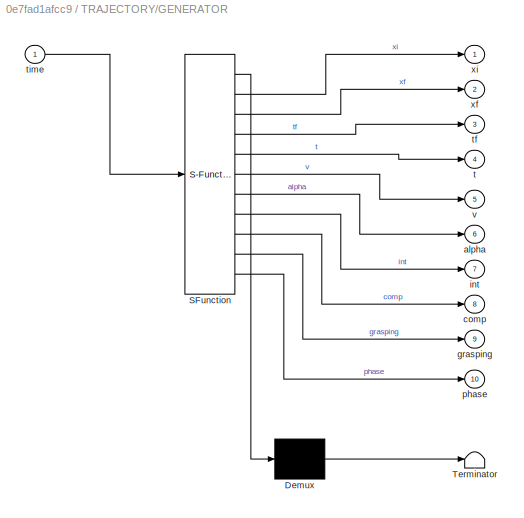
BLOCK [SubSystem] TRAJECTORY/GENERATOR
  ErrorFcn = Stateflow.Translate.translate
  PermitHierarchicalResolution = ExplicitOnly
  Ports = [1, 10]
  RequestExecContextInheritance = off
  SFBlockType = MATLAB Function
  TreatAsAtomicUnit = on
BLOCK [Demux] TRAJECTORY/GENERATOR/ Demux 
  Outputs = 1
  Ports = [1, 1]
BLOCK [S-Function] TRAJECTORY/GENERATOR/ SFunction 
  EnableBusSupport = on
  FunctionName = sf_sfun
  PortCounts = [1 11]
  Ports = [1, 11]
  SFcnIsStateOwnerBlock = off
  SFunctionDeploymentMode = off
  Tag = Stateflow S-Function 11
BLOCK [Terminator] TRAJECTORY/GENERATOR/ Terminator 
BLOCK [Outport] TRAJECTORY/GENERATOR/alpha
  Port = 6
BLOCK [Outport] TRAJECTORY/GENERATOR/comp
  Port = 8
BLOCK [Outport] TRAJECTORY/GENERATOR/grasping
  Port = 9
BLOCK [Outport] TRAJECTORY/GENERATOR/int
  Port = 7
BLOCK [Outport] TRAJECTORY/GENERATOR/phase
  Port = 10
BLOCK [Outport] TRAJECTORY/GENERATOR/t
  Port = 4
BLOCK [Outport] TRAJECTORY/GENERATOR/tf
  Port = 3
BLOCK [Inport] TRAJECTORY/GENERATOR/time
BLOCK [Outport] TRAJECTORY/GENERATOR/v
  Port = 5
BLOCK [Outport] TRAJECTORY/GENERATOR/xf
  Port = 2
BLOCK [Outport] TRAJECTORY/GENERATOR/xi
BLOCK [SubSystem] TRAJECTORY/INTERPOLATOR
  ErrorFcn = Stateflow.Translate.translate
  PermitHierarchicalResolution = ExplicitOnly
  Ports = [6, 3]
  RequestExecContextInheritance = off
  SFBlockType = MATLAB Function
  TreatAsAtomicUnit = on
BLOCK [Demux] TRAJECTORY/INTERPOLATOR/ Demux 
  Outputs = 1
  Ports = [1, 1]
BLOCK [S-Function] TRAJECTORY/INTERPOLATOR/ SFunction 
  EnableBusSupport = on
  FunctionName = sf_sfun
  PortCounts = [6 4]
  Ports = [6, 4]
  SFcnIsStateOwnerBlock = off
  SFunctionDeploymentMode = off
  Tag = Stateflow S-Function 17
BLOCK [Terminator] TRAJECTORY/INTERPOLATOR/ Terminator 
BLOCK [Inport] TRAJECTORY/INTERPOLATOR/alpha
  Port = 6
BLOCK [Outport] TRAJECTORY/INTERPOLATOR/ddz_des
  Port = 3
BLOCK [Outport] TRAJECTORY/INTERPOLATOR/dz_des
  Port = 2
BLOCK [Inport] TRAJECTORY/INTERPOLATOR/t
  Port = 4
BLOCK [Inport] TRAJECTORY/INTERPOLATOR/tf
  Port = 3
BLOCK [Inport] TRAJECTORY/INTERPOLATOR/v
  Port = 5
BLOCK [Inport] TRAJECTORY/INTERPOLATOR/xf
  Port = 2
BLOCK [Inport] TRAJECTORY/INTERPOLATOR/xi
BLOCK [Outport] TRAJECTORY/INTERPOLATOR/z_des
BLOCK [Outport] TRAJECTORY/comp
  Port = 4
BLOCK [Outport] TRAJECTORY/ddz_des
  Port = 3
BLOCK [Outport] TRAJECTORY/dz_des
  Port = 2
BLOCK [Outport] TRAJECTORY/grasping
  Port = 6
BLOCK [Outport] TRAJECTORY/int
  Port = 5
BLOCK [Outport] TRAJECTORY/phase
  Port = 7
BLOCK [Inport] TRAJECTORY/time
BLOCK [Outport] TRAJECTORY/z_des
BLOCK [Goto] Time
  GotoTag = time
BLOCK [From] Time1
  GotoTag = time
BLOCK [From] Time2
  GotoTag = time
BLOCK [ToWorkspace] To Workspace
  FixptAsFi = on
  MaxDataPoints = inf
  Ports = [1]
  SampleTime = -1
  SaveFormat = Timeseries
  VariableName = q
BLOCK [ToWorkspace] To Workspace1
  FixptAsFi = on
  MaxDataPoints = inf
  Ports = [1]
  SampleTime = -1
  SaveFormat = Timeseries
  VariableName = z1
BLOCK [ToWorkspace] To Workspace2
  FixptAsFi = on
  MaxDataPoints = inf
  Ports = [1]
  SampleTime = -1
  SaveFormat = Timeseries
  VariableName = F_ext_fixed
BLOCK [ToWorkspace] To Workspace3
  FixptAsFi = on
  MaxDataPoints = inf
  Ports = [1]
  SampleTime = -1
  SaveFormat = Timeseries
  VariableName = z
BLOCK [ToWorkspace] To Workspace4
  FixptAsFi = on
  MaxDataPoints = inf
  Ports = [1]
  SampleTime = -1
  Save2DSignal = 2-D array (concatenate along first dimension)
  SaveFormat = Timeseries
  VariableName = z_des
BLOCK [ToWorkspace] To Workspace5
  FixptAsFi = on
  MaxDataPoints = inf
  Ports = [1]
  SampleTime = -1
  SaveFormat = Timeseries
  VariableName = F_ext_var
BLOCK [ToWorkspace] To Workspace6
  FixptAsFi = on
  MaxDataPoints = inf
  Ports = [1]
  SampleTime = -1
  SaveFormat = Timeseries
  VariableName = K_step
BLOCK [Reference] Trajectory 1  REF=simulink/Sinks/XY Graph
  Commented = on
  Ports = [2]
  SourceBlock = simulink/Sinks/XY Graph
  SourceProductBaseCode = SL
  SourceType = XY scope.
BLOCK [Scope] Velocity M_D_S
  Floating = off
  NumInputPorts = 1
  Ports = [1]
  ScopeSpecificationString = Simulink.scopes.TimeScopeBlockCfg('CurrentConfiguration', extmgr.ConfigurationSet(extmgr.Configuration('Core','General UI',true),extmgr.Configuration('Core','Source UI',true),extmgr.Configuration('Sources','WiredSimulink',true,'DataLoggingVariableName','ScopeData14'),extmgr.Configuration('Visuals','Time Domain',true,'SerializedDisplays',{struct('MinYLimReal','-1.35562','MaxYLimReal','2.70609','YLa...<+1413ch>
BLOCK [Scope] Velocity M_D_S3
  Floating = off
  NumInputPorts = 1
  Ports = [1]
  ScopeSpecificationString = Simulink.scopes.TimeScopeBlockCfg('CurrentConfiguration', extmgr.ConfigurationSet(extmgr.Configuration('Core','General UI',true),extmgr.Configuration('Core','Source UI',true),extmgr.Configuration('Sources','WiredSimulink',true,'DataLoggingVariableName','ScopeData3'),extmgr.Configuration('Visuals','Time Domain',true),extmgr.Configuration('Tools','Plot Navigation',true),extmgr.Configuration('Tools',...<+40ch>
BLOCK [Goto] comp
  GotoTag = comp
BLOCK [From] comp1
  GotoTag = comp
BLOCK [From] comp2
  GotoTag = comp
BLOCK [Scope] comparison
  Floating = off
  NumInputPorts = 2
  Ports = [2]
  ScopeSpecificationString = Simulink.scopes.TimeScopeBlockCfg('CurrentConfiguration', extmgr.ConfigurationSet(extmgr.Configuration('Core','General UI',true),extmgr.Configuration('Core','Source UI',true),extmgr.Configuration('Sources','WiredSimulink',true,'DataLoggingVariableName','ScopeData1'),extmgr.Configuration('Visuals','Time Domain',true,'SerializedDisplays',{struct('MinYLimReal','-0.3125','MaxYLimReal','1.8125','YLabel...<+1588ch>
BLOCK [Goto] ddz_des
  GotoTag = ddz_des
BLOCK [Scope] dz
  Floating = off
  NumInputPorts = 1
  Ports = [1]
  ScopeSpecificationString = Simulink.scopes.TimeScopeBlockCfg('CurrentConfiguration', extmgr.ConfigurationSet(extmgr.Configuration('Core','General UI',true),extmgr.Configuration('Core','Source UI',true),extmgr.Configuration('Sources','WiredSimulink',true,'DataLoggingVariableName','ScopeData15'),extmgr.Configuration('Visuals','Time Domain',true,'SerializedDisplays',{struct('MinYLimReal','-1.35562','MaxYLimReal','2.70609','YLa...<+1438ch>
BLOCK [Goto] dz_des
  GotoTag = dz_des
  TagVisibility = global
BLOCK [Goto] grasping
  GotoTag = grasping
BLOCK [Goto] int
  GotoTag = int
BLOCK [Scope] int&comp
  Floating = off
  NumInputPorts = 2
  Ports = [2]
  ScopeSpecificationString = Simulink.scopes.TimeScopeBlockCfg('CurrentConfiguration', extmgr.ConfigurationSet(extmgr.Configuration('Core','General UI',true),extmgr.Configuration('Core','Source UI',true),extmgr.Configuration('Sources','WiredSimulink',true,'DataLoggingVariableName','ScopeData12'),extmgr.Configuration('Visuals','Time Domain',true,'SerializedDisplays',{struct('MinYLimReal','-0.125','MaxYLimReal','1.125','YLabelR...<+1590ch>
BLOCK [From] int1
  GotoTag = int
BLOCK [From] int2
  GotoTag = int
BLOCK [SubSystem] noises
  Ports = [0, 1]
  RequestExecContextInheritance = off
BLOCK [Reference] noises/Band-Limited White Noise1  REF=simulink/Sources/Band-Limited
White Noise
  Ports = [0, 1]
  SourceBlock = simulink/Sources/Band-Limited\nWhite Noise
  SourceProductBaseCode = SL
  SourceType = Band-Limited White Noise.
BLOCK [Reference] noises/Band-Limited White Noise2  REF=simulink/Sources/Band-Limited
White Noise
  Ports = [0, 1]
  SourceBlock = simulink/Sources/Band-Limited\nWhite Noise
  SourceProductBaseCode = SL
  SourceType = Band-Limited White Noise.
BLOCK [Mux] noises/Mux1
  DisplayOption = bar
  Inputs = 2
  Ports = [2, 1]
BLOCK [Outport] noises/f_ext1
BLOCK [Goto] phase
  GotoTag = phase
BLOCK [From] z
  GotoTag = RR_position
BLOCK [From] z1
  GotoTag = RR_position
BLOCK [From] z_des1
  GotoTag = z_des
BLOCK [From] z_des10
  GotoTag = z_des
BLOCK [From] z_des2
  GotoTag = z_des
BLOCK [From] z_des3
  GotoTag = z_des
BLOCK [From] z_des4
  GotoTag = z_des
BLOCK [From] z_des5
  GotoTag = z_des
BLOCK [From] z_des9
  GotoTag = z_des
ANNOTATION (root): K_step con preferenza di compensazione
ANNOTATION (root): INITIAL CONDITIONS
ANNOTATION (root): TRAJECTORY PLANNER
ANNOTATION M_D_S3: dx
ANNOTATION M_D_S5: dx
ANNOTATION RR_Model_Joint_Space: q_
ANNOTATION RR_Model_Joint_Space: q_dot
ANNOTATION RR_Model_Joint_Space: q_dot_dot
NET CONTROLLER:1 -> Control action:1, RR_Model_Joint_Space:2
NET Clock:1 -> TRAJECTORY:1, Time:1
LINE Constant2:1 -> Goto3:1
LINE Constant3:1 -> Goto2:1
LINE Constant4:1 -> Goto8:1
LINE Demux2:1 -> Trajectory 1:1
LINE Demux2:2 -> Trajectory 1:2
LINE Dyrect Kinematics:1 -> dz:1
NET Dyrect Kinematics:2 -> CONFRONTO:1, RR_position:1, To Workspace3:1
NET F_ext1:1 -> F_ext:1, RR_Model_Joint_Space:1, Sum:1, To Workspace5:1
NET F_ext2:1 -> F_ext_MDS:1, M_D_S5:1, PLANNER1:1
NET F_ext3:1 -> M_D_S3:1, Scope5:1, To Workspace2:1
LINE From10:1 -> RR_Model_Joint_Space:3
LINE From11:1 -> RR_Model_Joint_Space:4
LINE From12:1 -> M_D_S5:7
LINE From13:1 -> M_D_S5:8
LINE From14:1 -> F_ext2:1
LINE From15:1 -> F_ext1:3
LINE From16:1 -> Initial Condition E-E:1
LINE From17:1 -> Initial Condition E-E:2
LINE From18:1 -> M_D_S5:4
LINE From19:1 -> F_ext3:3
LINE From1:1 -> CONTROLLER:8
LINE From20:1 -> MATLAB Function2:2
LINE From21:1 -> MATLAB Function2:3
LINE From2:1 -> M_D_S5:9
LINE From34:1 -> M_D_S3:7
LINE From35:1 -> M_D_S3:8
LINE From36:1 -> F_ext3:1
LINE From37:1 -> M_D_S3:4
LINE From39:1 -> M_D_S3:5
LINE From3:1 -> M_D_S3:9
LINE From5:1 -> M_D_S5:5
LINE From6:1 -> F_ext2:3
LINE From7:1 -> CONTROLLER:5
LINE From8:1 -> CONTROLLER:6
LINE From9:1 -> CONTROLLER:7
LINE From:1 -> PLANNER1:2
LINE Gain:1 -> Joint angles:1
LINE Grasping1:1 -> F_ext2:2
LINE Grasping2:1 -> RR_Model_Joint_Space:5
LINE Grasping3:1 -> Inertia :1
LINE Grasping4:1 -> F_ext3:2
LINE Grasping9:1 -> MATLAB Function2:1
LINE Grasping:1 -> F_ext1:2
NET Initial Condition E-E:1 -> Display_z_intial_position:1, Goto:1
LINE Initial Condition E-E:2 -> Scope:1
NET MATLAB Function2:1 -> K step:1, M_D_S3:2, To Workspace6:1
LINE MATLAB Function2:2 -> M_D_S3:3
LINE M_D_S3/D:1 -> M_D_S3/DAMPER:2
NET M_D_S3/DAMPER:1 -> M_D_S3/Scope:1, M_D_S3/Sum:3
LINE M_D_S3/F_ext:1 -> M_D_S3/Sum:1
LINE M_D_S3/Initial_Position:1 -> M_D_S3/Integrator:2
LINE M_D_S3/Initial_Velocity:1 -> M_D_S3/Integrator1:2
NET M_D_S3/Integrator1:1 -> M_D_S3/Integrator:1, M_D_S3/Sum1:1, M_D_S3/VELOCITY:1, M_D_S3/velocita:1
NET M_D_S3/Integrator:1 -> M_D_S3/POSITION:1, M_D_S3/Sum2:1, M_D_S3/posizione:1
LINE M_D_S3/K:1 -> M_D_S3/SPRING:2
LINE M_D_S3/M:1 -> M_D_S3/MASS^-1:1
LINE M_D_S3/MASS^-1:1 -> M_D_S3/Sum3:1
NET M_D_S3/SPRING:1 -> M_D_S3/Scope1:1, M_D_S3/Sum:2
LINE M_D_S3/Sum1:1 -> M_D_S3/DAMPER:1
LINE M_D_S3/Sum2:1 -> M_D_S3/SPRING:1
NET M_D_S3/Sum3:1 -> M_D_S3/Integrator1:1, M_D_S3/acc:1
LINE M_D_S3/Sum:1 -> M_D_S3/MASS^-1:2
LINE M_D_S3/ddz_des:1 -> M_D_S3/Sum3:2
LINE M_D_S3/dz_des:1 -> M_D_S3/Sum1:2
NET M_D_S3/z_des:1 -> M_D_S3/Sum2:2, M_D_S3/posizione:2
NET M_D_S3:1 -> MDS_position3:1, Scope3:2, To Workspace1:1
LINE M_D_S3:2 -> Velocity M_D_S3:1
LINE M_D_S5/D:1 -> M_D_S5/DAMPER:2
NET M_D_S5/DAMPER:1 -> M_D_S5/Scope:1, M_D_S5/Sum:3
LINE M_D_S5/F_ext:1 -> M_D_S5/Sum:1
LINE M_D_S5/Initial_Position:1 -> M_D_S5/Integrator:2
LINE M_D_S5/Initial_Velocity:1 -> M_D_S5/Integrator1:2
NET M_D_S5/Integrator1:1 -> M_D_S5/Integrator:1, M_D_S5/Sum1:1, M_D_S5/VELOCITY:1, M_D_S5/velocita:1
NET M_D_S5/Integrator:1 -> M_D_S5/POSITION:1, M_D_S5/Sum2:1, M_D_S5/posizione:1
LINE M_D_S5/K:1 -> M_D_S5/SPRING:2
LINE M_D_S5/M:1 -> M_D_S5/MASS^-1:1
LINE M_D_S5/MASS^-1:1 -> M_D_S5/Sum3:1
NET M_D_S5/SPRING:1 -> M_D_S5/Scope1:1, M_D_S5/Sum:2
LINE M_D_S5/Sum1:1 -> M_D_S5/DAMPER:1
LINE M_D_S5/Sum2:1 -> M_D_S5/SPRING:1
NET M_D_S5/Sum3:1 -> M_D_S5/Integrator1:1, M_D_S5/acc:1
LINE M_D_S5/Sum:1 -> M_D_S5/MASS^-1:2
LINE M_D_S5/ddz_des:1 -> M_D_S5/Sum3:2
LINE M_D_S5/dz_des:1 -> M_D_S5/Sum1:2
NET M_D_S5/z_des:1 -> M_D_S5/Sum2:2, M_D_S5/posizione:2
NET M_D_S5:1 -> CONFRONTO:3, MDS_position:1, Scope3:1, comparison:2
LINE M_D_S5:2 -> Velocity M_D_S:1
LINE PLANNER1/F_ext:1 -> PLANNER1/PLANNER_UNION:1
LINE PLANNER1/INTERPOLATOR OF K AND D :1 -> PLANNER1/K:1
LINE PLANNER1/INTERPOLATOR OF K AND D :2 -> PLANNER1/D:1
LINE PLANNER1/PLANNER_UNION:1 -> PLANNER1/INTERPOLATOR OF K AND D :2
LINE PLANNER1/PLANNER_UNION:2 -> PLANNER1/INTERPOLATOR OF K AND D :3
LINE PLANNER1/comp:1 -> PLANNER1/PLANNER_UNION:5
LINE PLANNER1/int:1 -> PLANNER1/PLANNER_UNION:4
NET PLANNER1/time:1 -> PLANNER1/INTERPOLATOR OF K AND D :1, PLANNER1/PLANNER_UNION:6
LINE PLANNER1/z:1 -> PLANNER1/PLANNER_UNION:2
LINE PLANNER1/z_des:1 -> PLANNER1/PLANNER_UNION:3
NET PLANNER1:1 -> K_MDS:1, M_D_S5:2, Scope2:2
NET PLANNER1:2 -> D_MDS:1, M_D_S5:3
LINE PLANNER2/F_ext:1 -> PLANNER2/PLANNER_UNION:1
LINE PLANNER2/INTERPOLATOR OF K AND D :1 -> PLANNER2/K:1
LINE PLANNER2/INTERPOLATOR OF K AND D :2 -> PLANNER2/D:1
LINE PLANNER2/PLANNER_UNION:1 -> PLANNER2/INTERPOLATOR OF K AND D :2
LINE PLANNER2/PLANNER_UNION:2 -> PLANNER2/INTERPOLATOR OF K AND D :3
LINE PLANNER2/comp:1 -> PLANNER2/PLANNER_UNION:5
LINE PLANNER2/int:1 -> PLANNER2/PLANNER_UNION:4
NET PLANNER2/time:1 -> PLANNER2/INTERPOLATOR OF K AND D :1, PLANNER2/PLANNER_UNION:6
LINE PLANNER2/z:1 -> PLANNER2/PLANNER_UNION:2
LINE PLANNER2/z_des:1 -> PLANNER2/PLANNER_UNION:3
NET PLANNER2:1 -> CONTROLLER:2, K_RR:1, Scope2:1
NET PLANNER2:2 -> CONTROLLER:3, D_RR:1
LINE RR_Model_Joint_Space/CORIOLIS:1 -> RR_Model_Joint_Space/Sum:3
LINE RR_Model_Joint_Space/F_ext:1 -> RR_Model_Joint_Space/MATLAB Function:1
LINE RR_Model_Joint_Space/GRAVITY:1 -> RR_Model_Joint_Space/Sum:2
LINE RR_Model_Joint_Space/Initial_Position:1 -> RR_Model_Joint_Space/Integrator:2
LINE RR_Model_Joint_Space/Initial_Velocity:1 -> RR_Model_Joint_Space/Integrator1:2
NET RR_Model_Joint_Space/Integrator1:1 -> RR_Model_Joint_Space/CORIOLIS:2, RR_Model_Joint_Space/Integrator:1, RR_Model_Joint_Space/q_dot:1
NET RR_Model_Joint_Space/Integrator:1 -> RR_Model_Joint_Space/CORIOLIS:1, RR_Model_Joint_Space/Displayqqq:1, RR_Model_Joint_Space/GRAVITY:1, RR_Model_Joint_Space/MASS^-1:1, RR_Model_Joint_Space/MATLAB Function:2, RR_Model_Joint_Space/q:1
LINE RR_Model_Joint_Space/MASS^-1:1 -> RR_Model_Joint_Space/Integrator1:1
LINE RR_Model_Joint_Space/MATLAB Function:1 -> RR_Model_Joint_Space/Sum:1
LINE RR_Model_Joint_Space/Sum:1 -> RR_Model_Joint_Space/MASS^-1:2
NET RR_Model_Joint_Space/grasping:1 -> RR_Model_Joint_Space/CORIOLIS:3, RR_Model_Joint_Space/MASS^-1:3
NET RR_Model_Joint_Space/tau:1 -> RR_Model_Joint_Space/Display5:1, RR_Model_Joint_Space/Sum:4
NET RR_Model_Joint_Space:1 -> Dyrect Kinematics:1, Goto4:1
NET RR_Model_Joint_Space:2 -> Dyrect Kinematics:2, Gain:1, Goto5:1, Scope1:1, To Workspace:1
NET Sum:1 -> CONTROLLER:1, PLANNER2:1
LINE TRAJECTORY/GENERATOR:1 -> TRAJECTORY/INTERPOLATOR:1
LINE TRAJECTORY/GENERATOR:10 -> TRAJECTORY/phase:1
LINE TRAJECTORY/GENERATOR:2 -> TRAJECTORY/INTERPOLATOR:2
LINE TRAJECTORY/GENERATOR:3 -> TRAJECTORY/INTERPOLATOR:3
LINE TRAJECTORY/GENERATOR:4 -> TRAJECTORY/INTERPOLATOR:4
LINE TRAJECTORY/GENERATOR:5 -> TRAJECTORY/INTERPOLATOR:5
LINE TRAJECTORY/GENERATOR:6 -> TRAJECTORY/INTERPOLATOR:6
LINE TRAJECTORY/GENERATOR:7 -> TRAJECTORY/int:1
LINE TRAJECTORY/GENERATOR:8 -> TRAJECTORY/comp:1
LINE TRAJECTORY/GENERATOR:9 -> TRAJECTORY/grasping:1
LINE TRAJECTORY/INTERPOLATOR:1 -> TRAJECTORY/z_des:1
LINE TRAJECTORY/INTERPOLATOR:2 -> TRAJECTORY/dz_des:1
LINE TRAJECTORY/INTERPOLATOR:3 -> TRAJECTORY/ddz_des:1
LINE TRAJECTORY/time:1 -> TRAJECTORY/GENERATOR:1
NET TRAJECTORY:1 -> Goto6:1, Scope4:1, To Workspace4:1
LINE TRAJECTORY:2 -> dz_des:1
LINE TRAJECTORY:3 -> ddz_des:1
NET TRAJECTORY:4 -> comp:1, int&comp:1
NET TRAJECTORY:5 -> int&comp:2, int:1
NET TRAJECTORY:6 -> GRASPING:1, grasping:1
LINE TRAJECTORY:7 -> phase:1
LINE Time1:1 -> PLANNER2:3
LINE Time2:1 -> PLANNER1:3
LINE comp1:1 -> PLANNER2:6
LINE comp2:1 -> PLANNER1:6
LINE int1:1 -> PLANNER2:5
LINE int2:1 -> PLANNER1:5
LINE noises/Band-Limited White Noise1:1 -> noises/Mux1:1
LINE noises/Band-Limited White Noise2:1 -> noises/Mux1:2
LINE noises/Mux1:1 -> noises/f_ext1:1
LINE z1:1 -> F_ext1:1
LINE z:1 -> PLANNER2:2
LINE z_des10:1 -> Scope3:3
LINE z_des1:1 -> PLANNER2:4
LINE z_des2:1 -> PLANNER1:4
LINE z_des3:1 -> CONTROLLER:4
LINE z_des4:1 -> M_D_S5:6
NET z_des5:1 -> CONFRONTO:2, Demux2:1, comparison:1
LINE z_des9:1 -> M_D_S3:6
note: NET lines group one-source signal fan-out (src -> all destinations, sorted); 1:1 wires keep LINE
CHART Dyrect Kinematics states=1 transitions=1
  STATE_LABEL 'eML_blk_kernel()'
  STATE_LABEL 'SCRIPT:\nfunction [dz,z] = fcn(q_dot,q,l1, l2)\n\nz = zeros(2,1);\nz(1) = l1*cos(q(1)) + l2*cos(q(1)+q(2));\nz(2) = l1*sin(q(1)) + l2*sin(q(1)+q(2));\n\nJa = zeros(2,2);\nJa = [-l1*sin(q(1)) - l2*sin(q(1)+q(2)), -l2*sin(q(1)+q(2)); ...\n    l1*cos(q(1)) + l2*cos(q(1)+q(2)), l2*cos(q(1)+q(2))];\n\ndz = zeros(2,1);\ndz = Ja*q_dot;\n\nend'
CHART PLANNER1/INTERPOLATOR OF K AND D  states=1 transitions=1
  STATE_LABEL 'eML_blk_kernel()'
  STATE_LABEL 'SCRIPT:\nfunction [K,D] = fcn(time, kx_f, ky_f, e_max, F_max,M, berta, a0, mass, csi)\n\npersistent kx ky time_prec\n\nif isempty(time_prec)\n    time_prec = 0;\nend\n\nif isempty(kx)\n   kx = F_max(1)/e_max; \nend\nif isempty(ky)\n   ky = F_max(2)/e_max;\nend\n\n% everytime k is increasing in accordance with stability condition\nif kx_f <= kx\n    kx = kx_f;\nelse \n    kx_i = kx;\n    k_dotx = berta*(4*a0*sqrt(kx_i/...<+561ch>'
CHART F_ext3 states=1 transitions=1
  STATE_LABEL 'eML_blk_kernel()'
  STATE_LABEL 'SCRIPT:\nfunction F_ext = fcn(z, grasping, mass_can, g, phase, x_can, y_table, k_can, k_table, l_can, x_wall, y_shelf, k_wall, k_shelf) \n\n% hypothesis: table reaction force with elastic behaviour\nF_ext = zeros(2,1);\n\nif phase == 1\n    % if contact is happened with can\n    if grasping == 0\n        if z(1) > x_can\n            F_ext(1) = -k_can*(z(1) - x_can);    \n        end\n        if z(2) < y_table...<+923ch>'  <repeated x3 — deduplicated; at blocks: F_ext3, F_ext2, F_ext1>
CHART MATLAB Function1 states=1 transitions=1
  STATE_LABEL 'eML_blk_kernel()'
  STATE_LABEL 'SCRIPT:\nfunction [K,D] = fcn(grasping,phase,M)\nk1 = 200;\nk2 = 200;\nif phase == 1\n    if grasping == 0\n      k1 = 20;\n      k2 = 20;\n    else\n      k1 = 200;\n      k2 = 490.5; \n    end\nelseif phase == 2 \n     k1 = 20;\n     k2 = 490.5;\nelseif phase == 3\n     k1 = 20;\n     k2 = 20;\nend\nK = [k1 0; 0 k2];\nD = [sqrt(4*M*k1) 0; 0 sqrt(4*M*k2)];\nend \n'
CHART PLANNER1/PLANNER_UNION states=1 transitions=1
  STATE_LABEL 'eML_blk_kernel()'
  STATE_LABEL 'SCRIPT:\nfunction [kx, ky] = fcn(F_ext, z, z_des, int, comp, e_max, F_max, F_int_max, time)\n%% Description MDS_interaction\n\n\n%% Outputs\n% K            stiffness \n% D            damping \n\n%% Inputs\n% time          current simulation time\n% F_ext         measured external force\n% mass          mass scalar value \n% F_int_max     desired interaction force\n% z_des         desired trajectory\n% z         ...<+3608ch>'
CHART TRAJECTORY/GENERATOR states=1 transitions=1
  STATE_LABEL 'eML_blk_kernel()'
  STATE_LABEL 'SCRIPT:\nfunction  [xi, xf, tf, t, v, alpha, int, comp, grasping, phase] = fcn(time)\n\nalpha = 0.1;\nphase = 1;\nint = [1; 1];\ncomp = [0; 0];\ngrasping = 0;\n\nif time >= 0 && time < 2\n    tf = 2;\n    xi = [0; 0.3];\n    xf = [0.7; -0.1];\n    v = [(xf(1) - xi(1))/((1-alpha)*tf); (xf(2) - xi(2))/((1-alpha)*tf)];\n    t = time;\nelseif time >= 2 && time < 3\n    tf = 1;\n    xf = [0.7; -0.1];\n    xi = xf; \n    ...<+2574ch>'
CHART Inertia  states=1 transitions=1
  STATE_LABEL 'eML_blk_kernel()'
  STATE_LABEL 'SCRIPT:\nfunction M = fcn(grasping, mass_can, Mass)\n\nif grasping == 1\n    M = diag([Mass(1,1)+mass_can Mass(2,2)+mass_can]);\nelse\n    M = Mass;\nend\n\nend'
CHART CONTROLLER states=1 transitions=1
  STATE_LABEL 'eML_blk_kernel()'
  STATE_LABEL "SCRIPT:\nfunction tau = fcn(F_ext,Km, Dm,zdes, dzdes, ddzdes, q, q_dot, M)\n%% PROBLEMA MATRICE DELLE MASSE NON DIAGONALE\ncoder.extrinsic('Jacobianoa','Jacobianoa_dot','Mass','Coriolis','Gravity','cin_dir')\ndz = zeros(2,1);\nz = zeros(2,1);\nB = zeros(2,2);\nS = zeros(2,2);\nG = zeros(2,1);\nJa = zeros(2,2);\nJa_dot = zeros(2,2);\nBm = [M 0; 0 M];\nJa = Jacobianoa(q);\nJa_dot = Jacobianoa_dot(q,q_dot);\n\ndz =...<+690ch>"
CHART Initial Condition E-E states=1 transitions=1
  STATE_LABEL 'eML_blk_kernel()'
  STATE_LABEL 'SCRIPT:\nfunction [z,dz] = fcn(q_dot,q,l1, l2)\n\nz = zeros(2,1);\nz(1) = l1*cos(q(1)) + l2*cos(q(1)+q(2));\nz(2) = l1*sin(q(1)) + l2*sin(q(1)+q(2));\n\nJa = zeros(2,2);\nJa = [-l1*sin(q(1)) - l2*sin(q(1)+q(2)), -l2*sin(q(1)+q(2)); ...\n    l1*cos(q(1)) + l2*cos(q(1)+q(2)), l2*cos(q(1)+q(2))];\n\ndz = zeros(2,1);\ndz = Ja*q_dot;\n\nend'
CHART PLANNER2/INTERPOLATOR OF K AND D  states=1 transitions=1
  STATE_LABEL 'eML_blk_kernel()'
  STATE_LABEL 'SCRIPT:\nfunction [K,D] = fcn(time, kx_f, ky_f, e_max, F_max,M, berta, a0, mass, csi)\n\npersistent kx ky time_prec\n\nif isempty(time_prec)\n    time_prec = 0;\nend\n\nif isempty(kx)\n   kx = F_max(1)/e_max; \nend\nif isempty(ky)\n   ky = F_max(2)/e_max;\nend\n\n% everytime k is increasing in accordance with stability condition\nif kx_f <= kx\n    kx = kx_f;\nelse \n    kx_i = kx;\n    k_dotx = berta*(4*a0*sqrt(kx_i/...<+561ch>'
CHART PLANNER2/PLANNER_UNION states=1 transitions=1
  STATE_LABEL 'eML_blk_kernel()'
  STATE_LABEL 'SCRIPT:\nfunction [kx, ky] = fcn(F_ext, z, z_des, int, comp, e_max, F_max, F_int_max, time)\n%% Description MDS_interaction\n\n\n%% Outputs\n% K            stiffness \n% D            damping \n\n%% Inputs\n% time          current simulation time\n% F_ext         measured external force\n% mass          mass scalar value \n% F_int_max     desired interaction force\n% z_des         desired trajectory\n% z         ...<+3608ch>'
CHART F_ext2 states=1 transitions=1
  STATE_LABEL 'eML_blk_kernel()'
CHART TRAJECTORY/INTERPOLATOR states=1 transitions=1
  STATE_LABEL 'eML_blk_kernel()'
  STATE_LABEL 'SCRIPT:\nfunction [z_des, dz_des, ddz_des] = fcn(xi, xf, tf, t, v, alpha)\n\nta = alpha*tf; \nxa = (1/2)*v*ta;\n\nif t >= 0 && t < ta\n    ddz_des = v./ta;\n    dz_des = ddz_des*t;\n    z_des = xi + (1/2)*ddz_des*t^2;\nelseif t >= ta && t < (tf-ta)\n    ddz_des = [0; 0]; \n    dz_des = v; \n    z_des = xi + xa + dz_des*(t-ta);\nelseif t >= (tf- ta) && t < tf\n    ddz_des = -v./ta;\n    dz_des = v + ddz_des*(t - (...<+163ch>'
CHART MATLAB Function2 states=1 transitions=1
  STATE_LABEL 'eML_blk_kernel()'
  STATE_LABEL 'SCRIPT:\nfunction [K,D] = fcn(grasping,phase,M,z)\nk1 = 200;\nk2 = 200;\nif phase == 1\n    if grasping == 0\n      k1 = 20;\n      k2 = 20;\n    else\n      if z(2) > 0.1\n       k1 = 200;\n       k2 = 490.5; \n      else\n       k1 = 20;\n       k2 = 20;\n      end\n    end\nelseif phase == 2\n     k1 = 200;\n     k2 = 490.5;\n      if z(2) < 0.6\n        k2 = 20;\n      end \n      if z(1) > 1.3\n        k1 = 20;\n    ...<+118ch>'
CHART RR_Model_Joint_Space/CORIOLIS states=1 transitions=1
  STATE_LABEL 'eML_blk_kernel()'
  STATE_LABEL 'SCRIPT:\nfunction Fc = fcn(q,q_dot,a, ac, grasping)\n\nC = zeros(2,2);\nC = [-a*sin(q(2))*q_dot(2), -a*sin(q(2))*q_dot(1)-a*sin(q(2)*q_dot(2)); ...\n    a*sin(q(2))*q_dot(1), 0];\n% if grasping == 1\n%     Cc = [-ac*sin(q(2))*q_dot(2), -ac*sin(q(2))*q_dot(1)-ac*sin(q(2)*q_dot(2)); ...\n%           ac*sin(q(2))*q_dot(1), 0];\n%       C =  C + Cc;\n% end\n\nFc = C*q_dot;\n\nend\n'
CHART M_D_S5/DAMPER states=1 transitions=1
  STATE_LABEL 'eML_blk_kernel()'
  STATE_LABEL 'SCRIPT:\nfunction y = fcn(dx, D)\ny = - D*dx;\nend\n'
CHART M_D_S5/MASS^-1 states=1 transitions=1
  STATE_LABEL 'eML_blk_kernel()'
  STATE_LABEL 'SCRIPT:\nfunction ddx = fcn(M,F_tot)\nddx = (M^-1)*F_tot;\nend\n'
CHART M_D_S5/SPRING states=1 transitions=1
  STATE_LABEL 'eML_blk_kernel()'
  STATE_LABEL 'SCRIPT:\nfunction tau = fcn(x, K)\ntau= -K*x;\nend\n\n\n'
CHART M_D_S3/DAMPER states=1 transitions=1
  STATE_LABEL 'eML_blk_kernel()'
  STATE_LABEL 'SCRIPT:\nfunction y = fcn(dx, D)\ny = - D*dx;\nend\n'
CHART M_D_S3/MASS^-1 states=1 transitions=1
  STATE_LABEL 'eML_blk_kernel()'
  STATE_LABEL 'SCRIPT:\nfunction ddx = fcn(M,F_tot)\nddx = (M^-1)*F_tot;\nend\n'
CHART M_D_S3/SPRING states=1 transitions=1
  STATE_LABEL 'eML_blk_kernel()'
  STATE_LABEL 'SCRIPT:\nfunction tau = fcn(x, K)\ntau= -K*x;\nend\n\n\n'
CHART F_ext1 states=1 transitions=1
  STATE_LABEL 'eML_blk_kernel()'
CHART RR_Model_Joint_Space/GRAVITY states=1 transitions=1
  STATE_LABEL 'eML_blk_kernel()'
  STATE_LABEL 'SCRIPT:\nfunction G = fcn(q,g, l1, l2, m1, m2)\n\n\nG = [-(l1/2)*cos(q(1))*m1*g - m2*g*(l1*cos(q(1))+(l2/2)*cos(q(1)+q(2))); ...\n    -m2*g*(l2/2)*cos(q(1)+q(2))];\n\nend\n'
CHART RR_Model_Joint_Space/MASS^-1 states=1 transitions=1
  STATE_LABEL 'eML_blk_kernel()'
  STATE_LABEL 'SCRIPT:\nfunction ddq = fcn(q,F_tot,I1, I2, l1, l2, m1, m2, grasping, Ic, mass_can)\n\nmc = mass_can;\n\nB = [((l1^2)/4)*m1 + I1 + m2*(l1^2) + m2*((l2^2)/4) + m2*l1*l2*cos(q(2)) + I2, m2*(((l1*l2)/2)*cos(q(2)) + (l2^2)/4) + I2; ...\n    m2*(((l1*l2)/2)*cos(q(2)) + (l2^2)/4) + I2, m2*(l2^2)/4 + I2];\n\n% if grasping == 1\n%     Bc = [mc*((l1^2) + (l2^2) +2*l1*l2*cos(q(2))) + Ic, mc*((l2^2) + l1*l2*cos(q(2))...<+154ch>'
CHART RR_Model_Joint_Space/MATLAB Function states=1 transitions=1
  STATE_LABEL 'eML_blk_kernel()'
  STATE_LABEL "SCRIPT:\nfunction F_ext = fcn(F,q,l1, l2)\n\n\nJa = [-l1*sin(q(1)) - l2*sin(q(1)+q(2)), -l2*sin(q(1)+q(2)); ...\n    l1*cos(q(1)) + l2*cos(q(1)+q(2)), l2*cos(q(1)+q(2))];\n\nF_ext = Ja'*F;\n\nend"
CHART  states=0 transitions=0
CHART  states=0 transitions=0
CHART  states=0 transitions=0
CHART  states=0 transitions=0
CHART  states=0 transitions=0
CHART  states=0 transitions=0
CHART  states=0 transitions=0
CHART  states=0 transitions=0
CHART  states=0 transitions=0
CHART  states=0 transitions=0
CHART  states=0 transitions=0
CHART  states=0 transitions=0
CHART  states=0 transitions=0
CHART  states=0 transitions=0
CHART  states=0 transitions=0
CHART  states=0 transitions=0
CHART  states=0 transitions=0
CHART  states=0 transitions=0
CHART  states=0 transitions=0
CHART  states=0 transitions=0
CHART  states=0 transitions=0
CHART  states=0 transitions=0
CHART  states=0 transitions=0
CHART  states=0 transitions=0
CHART  states=0 transitions=0
